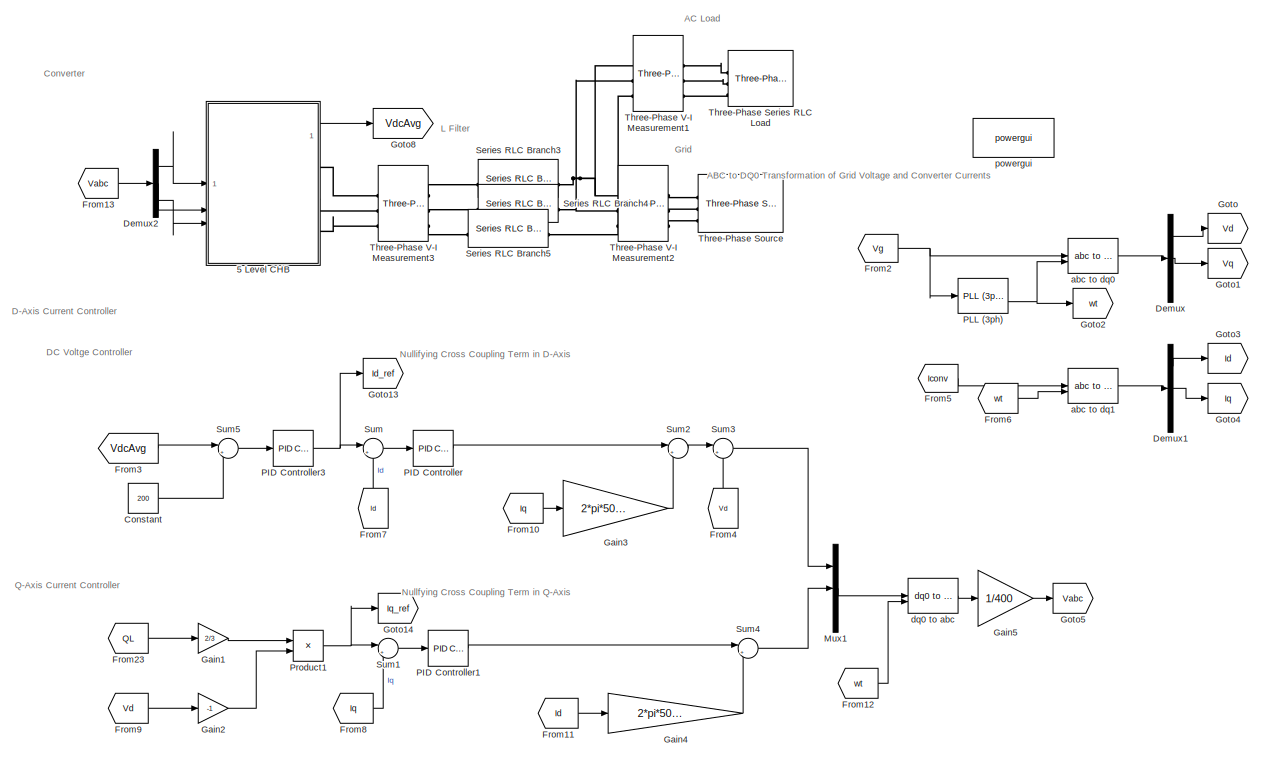
[diagram: root canvas - part 1/2, left side, full height]
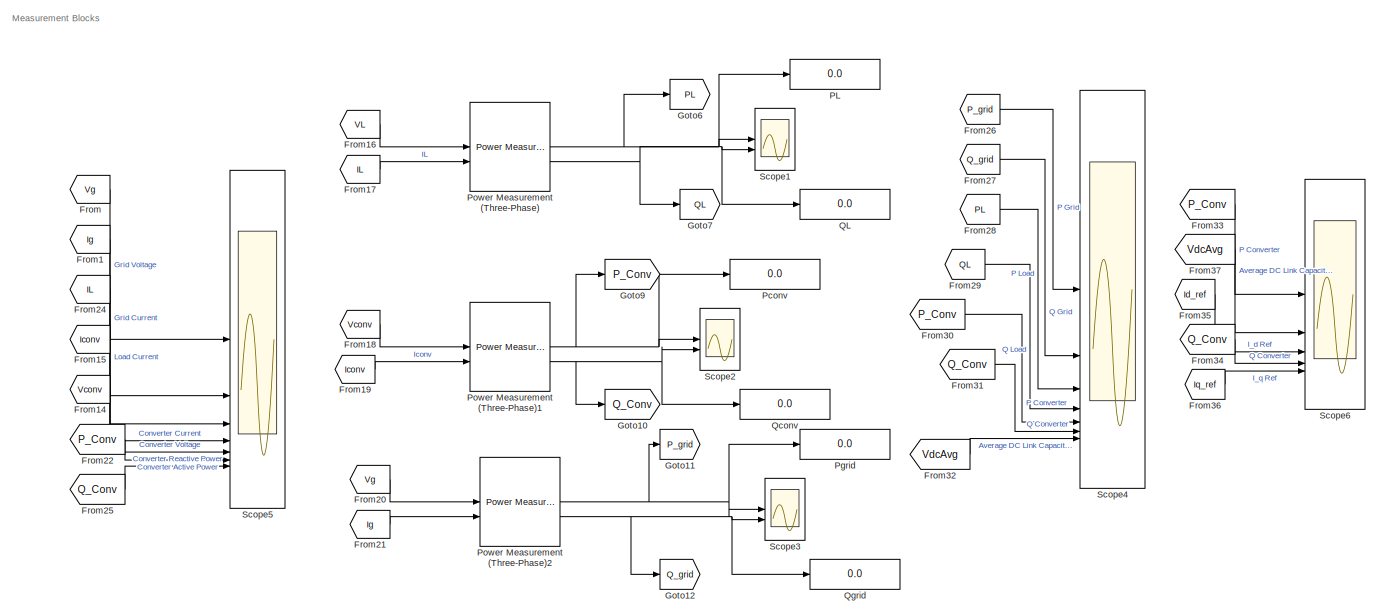
[diagram: root canvas - part 2/2, right side, full height]
MODEL slx_63b66ca47426
KIND model
CONFIG AbsTol = auto
CONFIG EnableMultiTasking = off
CONFIG FixedStep = 1e-6
CONFIG MaxStep = auto
CONFIG MinStep = auto
CONFIG RelTol = 1e-3
CONFIG SampleTimeConstraint = Unconstrained
CONFIG SolverName = ode4
CONFIG StartTime = 0.0
CONFIG StopTime = 2
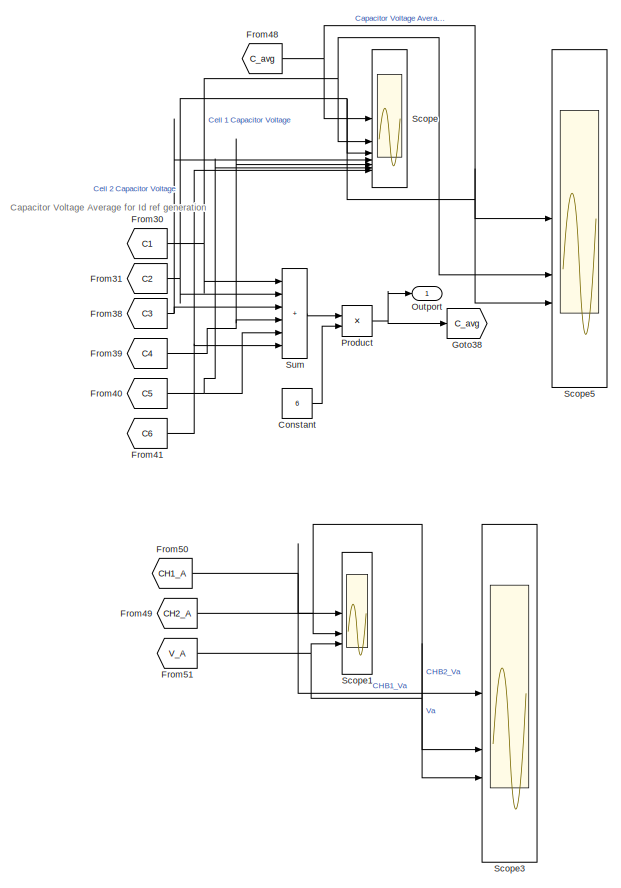
[diagram: 5 Level CHB - part 1/6, right side, full height]
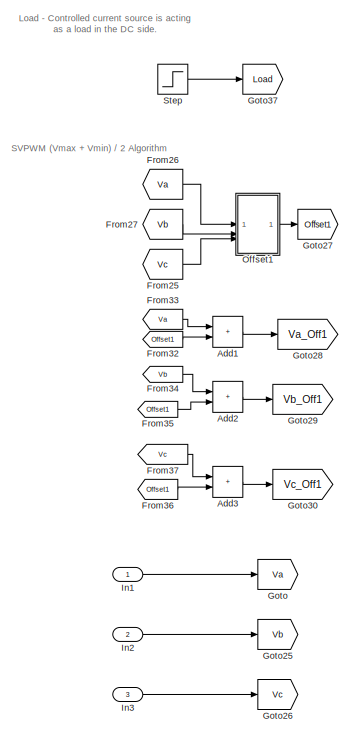
[diagram: 5 Level CHB - part 2/6, middle left region]
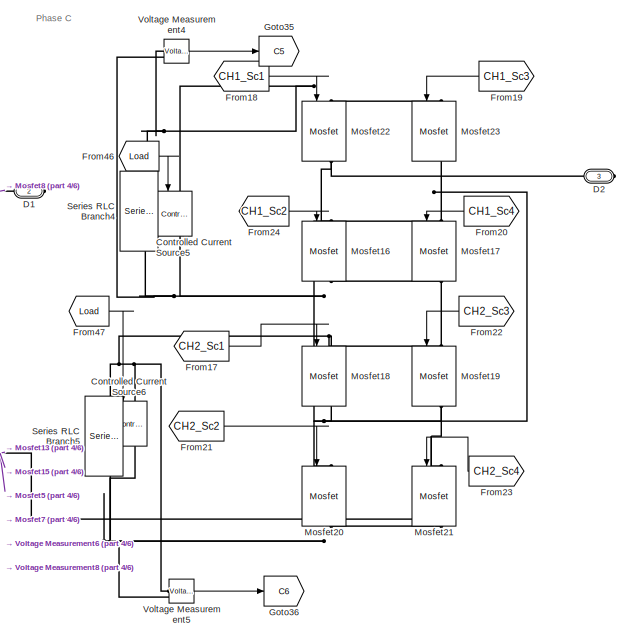
[diagram: 5 Level CHB - part 3/6, central region]
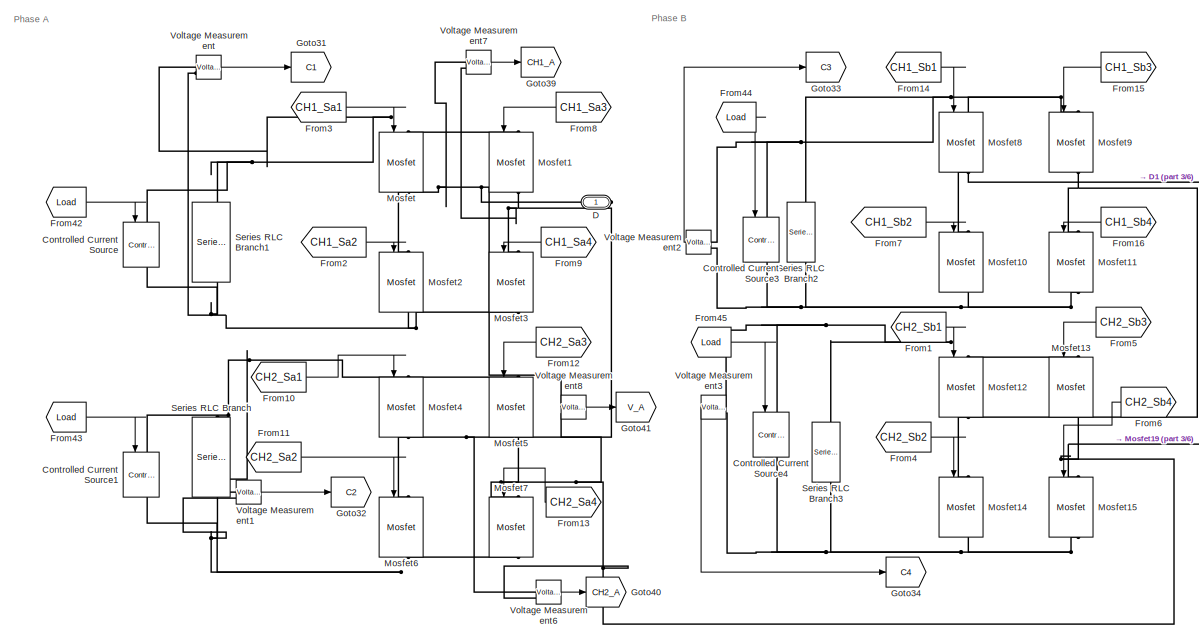
[diagram: 5 Level CHB - part 4/6, middle left region]
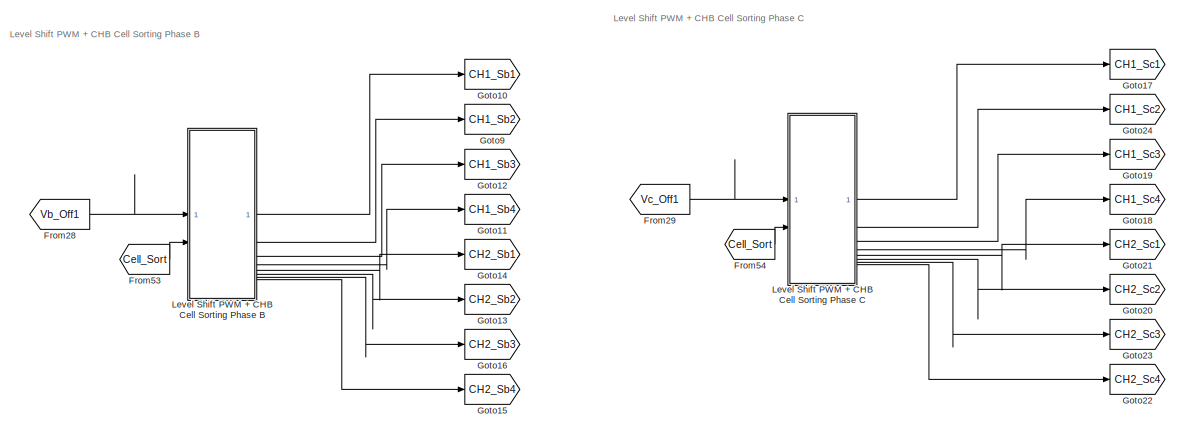
[diagram: 5 Level CHB - part 5/6, bottom center region]
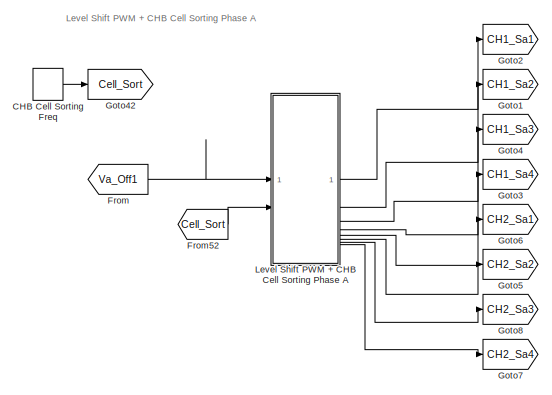
[diagram: 5 Level CHB - part 6/6, bottom left region]
BLOCK [SubSystem] 5 Level CHB
BLOCK [Sum] 5 Level CHB/Add1
  IconShape = rectangular
BLOCK [Sum] 5 Level CHB/Add2
  IconShape = rectangular
BLOCK [Sum] 5 Level CHB/Add3
  IconShape = rectangular
BLOCK [DiscretePulseGenerator] 5 Level CHB/CHB Cell Sorting Freq
  Period = 1/1000
  PulseType = Time based
  PulseWidth = 50
BLOCK [Constant] 5 Level CHB/Constant
  Value = 6
BLOCK [Reference] 5 Level CHB/Controlled Current Source  REF=spsControlledCurrentSourceLib/Controlled Current Source
  LibrarySourceBlock = sps_lib/Sources/Controlled Current Source
  NameLocation = top
  SourceBlock = spsControlledCurrentSourceLib/Controlled Current Source
  SourceType = Controlled Current Source
BLOCK [Reference] 5 Level CHB/Controlled Current Source1  REF=spsControlledCurrentSourceLib/Controlled Current Source
  LibrarySourceBlock = sps_lib/Sources/Controlled Current Source
  NameLocation = top
  SourceBlock = spsControlledCurrentSourceLib/Controlled Current Source
  SourceType = Controlled Current Source
BLOCK [Reference] 5 Level CHB/Controlled Current Source3  REF=spsControlledCurrentSourceLib/Controlled Current Source
  LibrarySourceBlock = sps_lib/Sources/Controlled Current Source
  NameLocation = top
  SourceBlock = spsControlledCurrentSourceLib/Controlled Current Source
  SourceType = Controlled Current Source
BLOCK [Reference] 5 Level CHB/Controlled Current Source4  REF=spsControlledCurrentSourceLib/Controlled Current Source
  LibrarySourceBlock = sps_lib/Sources/Controlled Current Source
  NameLocation = top
  SourceBlock = spsControlledCurrentSourceLib/Controlled Current Source
  SourceType = Controlled Current Source
BLOCK [Reference] 5 Level CHB/Controlled Current Source5  REF=spsControlledCurrentSourceLib/Controlled Current Source
  LibrarySourceBlock = sps_lib/Sources/Controlled Current Source
  NameLocation = top
  SourceBlock = spsControlledCurrentSourceLib/Controlled Current Source
  SourceType = Controlled Current Source
BLOCK [Reference] 5 Level CHB/Controlled Current Source6  REF=spsControlledCurrentSourceLib/Controlled Current Source
  LibrarySourceBlock = sps_lib/Sources/Controlled Current Source
  NameLocation = top
  SourceBlock = spsControlledCurrentSourceLib/Controlled Current Source
  SourceType = Controlled Current Source
BLOCK [PMIOPort] 5 Level CHB/D
  Side = Right
BLOCK [PMIOPort] 5 Level CHB/D1
  Port = 2
  Side = Right
BLOCK [PMIOPort] 5 Level CHB/D2
  Port = 3
  Side = Right
BLOCK [From] 5 Level CHB/From
  GotoTag = Va_Off1
BLOCK [From] 5 Level CHB/From1
  GotoTag = CH2_Sb1
BLOCK [From] 5 Level CHB/From10
  GotoTag = CH2_Sa1
BLOCK [From] 5 Level CHB/From11
  GotoTag = CH2_Sa2
BLOCK [From] 5 Level CHB/From12
  GotoTag = CH2_Sa3
  NameLocation = top
BLOCK [From] 5 Level CHB/From13
  GotoTag = CH2_Sa4
  NameLocation = top
BLOCK [From] 5 Level CHB/From14
  GotoTag = CH1_Sb1
BLOCK [From] 5 Level CHB/From15
  GotoTag = CH1_Sb3
  NameLocation = top
BLOCK [From] 5 Level CHB/From16
  GotoTag = CH1_Sb4
  NameLocation = top
BLOCK [From] 5 Level CHB/From17
  GotoTag = CH2_Sc1
BLOCK [From] 5 Level CHB/From18
  GotoTag = CH1_Sc1
BLOCK [From] 5 Level CHB/From19
  GotoTag = CH1_Sc3
  NameLocation = top
BLOCK [From] 5 Level CHB/From2
  GotoTag = CH1_Sa2
BLOCK [From] 5 Level CHB/From20
  GotoTag = CH1_Sc4
  NameLocation = top
BLOCK [From] 5 Level CHB/From21
  GotoTag = CH2_Sc2
BLOCK [From] 5 Level CHB/From22
  GotoTag = CH2_Sc3
  NameLocation = top
BLOCK [From] 5 Level CHB/From23
  GotoTag = CH2_Sc4
  NameLocation = top
BLOCK [From] 5 Level CHB/From24
  GotoTag = CH1_Sc2
BLOCK [From] 5 Level CHB/From25
  GotoTag = Vc
BLOCK [From] 5 Level CHB/From26
  GotoTag = Va
BLOCK [From] 5 Level CHB/From27
  GotoTag = Vb
BLOCK [From] 5 Level CHB/From28
  GotoTag = Vb_Off1
BLOCK [From] 5 Level CHB/From29
  GotoTag = Vc_Off1
BLOCK [From] 5 Level CHB/From3
  GotoTag = CH1_Sa1
BLOCK [From] 5 Level CHB/From30
  GotoTag = C1
BLOCK [From] 5 Level CHB/From31
  GotoTag = C2
BLOCK [From] 5 Level CHB/From32
  GotoTag = Offset1
BLOCK [From] 5 Level CHB/From33
  GotoTag = Va
BLOCK [From] 5 Level CHB/From34
  GotoTag = Vb
BLOCK [From] 5 Level CHB/From35
  GotoTag = Offset1
BLOCK [From] 5 Level CHB/From36
  GotoTag = Offset1
BLOCK [From] 5 Level CHB/From37
  GotoTag = Vc
BLOCK [From] 5 Level CHB/From38
  GotoTag = C3
BLOCK [From] 5 Level CHB/From39
  GotoTag = C4
BLOCK [From] 5 Level CHB/From4
  GotoTag = CH2_Sb2
BLOCK [From] 5 Level CHB/From40
  GotoTag = C5
BLOCK [From] 5 Level CHB/From41
  GotoTag = C6
BLOCK [From] 5 Level CHB/From42
  GotoTag = Load
BLOCK [From] 5 Level CHB/From43
  GotoTag = Load
BLOCK [From] 5 Level CHB/From44
  GotoTag = Load
BLOCK [From] 5 Level CHB/From45
  GotoTag = Load
BLOCK [From] 5 Level CHB/From46
  GotoTag = Load
BLOCK [From] 5 Level CHB/From47
  GotoTag = Load
BLOCK [From] 5 Level CHB/From48
  GotoTag = C_avg
BLOCK [From] 5 Level CHB/From49
  GotoTag = CH2_A
BLOCK [From] 5 Level CHB/From5
  GotoTag = CH2_Sb3
  NameLocation = top
BLOCK [From] 5 Level CHB/From50
  GotoTag = CH1_A
BLOCK [From] 5 Level CHB/From51
  GotoTag = V_A
BLOCK [From] 5 Level CHB/From52
  GotoTag = Cell_Sort
BLOCK [From] 5 Level CHB/From53
  GotoTag = Cell_Sort
BLOCK [From] 5 Level CHB/From54
  GotoTag = Cell_Sort
BLOCK [From] 5 Level CHB/From6
  GotoTag = CH2_Sb4
  NameLocation = top
BLOCK [From] 5 Level CHB/From7
  GotoTag = CH1_Sb2
BLOCK [From] 5 Level CHB/From8
  GotoTag = CH1_Sa3
  NameLocation = top
BLOCK [From] 5 Level CHB/From9
  GotoTag = CH1_Sa4
  NameLocation = top
BLOCK [Goto] 5 Level CHB/Goto
  GotoTag = Va
BLOCK [Goto] 5 Level CHB/Goto1
  GotoTag = CH1_Sa2
BLOCK [Goto] 5 Level CHB/Goto10
  GotoTag = CH1_Sb1
BLOCK [Goto] 5 Level CHB/Goto11
  GotoTag = CH1_Sb4
BLOCK [Goto] 5 Level CHB/Goto12
  GotoTag = CH1_Sb3
BLOCK [Goto] 5 Level CHB/Goto13
  GotoTag = CH2_Sb2
BLOCK [Goto] 5 Level CHB/Goto14
  GotoTag = CH2_Sb1
BLOCK [Goto] 5 Level CHB/Goto15
  GotoTag = CH2_Sb4
BLOCK [Goto] 5 Level CHB/Goto16
  GotoTag = CH2_Sb3
BLOCK [Goto] 5 Level CHB/Goto17
  GotoTag = CH1_Sc1
BLOCK [Goto] 5 Level CHB/Goto18
  GotoTag = CH1_Sc4
BLOCK [Goto] 5 Level CHB/Goto19
  GotoTag = CH1_Sc3
BLOCK [Goto] 5 Level CHB/Goto2
  GotoTag = CH1_Sa1
BLOCK [Goto] 5 Level CHB/Goto20
  GotoTag = CH2_Sc2
BLOCK [Goto] 5 Level CHB/Goto21
  GotoTag = CH2_Sc1
BLOCK [Goto] 5 Level CHB/Goto22
  GotoTag = CH2_Sc4
BLOCK [Goto] 5 Level CHB/Goto23
  GotoTag = CH2_Sc3
BLOCK [Goto] 5 Level CHB/Goto24
  GotoTag = CH1_Sc2
BLOCK [Goto] 5 Level CHB/Goto25
  GotoTag = Vb
BLOCK [Goto] 5 Level CHB/Goto26
  GotoTag = Vc
BLOCK [Goto] 5 Level CHB/Goto27
  GotoTag = Offset1
BLOCK [Goto] 5 Level CHB/Goto28
  GotoTag = Va_Off1
BLOCK [Goto] 5 Level CHB/Goto29
  GotoTag = Vb_Off1
BLOCK [Goto] 5 Level CHB/Goto3
  GotoTag = CH1_Sa4
BLOCK [Goto] 5 Level CHB/Goto30
  GotoTag = Vc_Off1
BLOCK [Goto] 5 Level CHB/Goto31
  GotoTag = C1
BLOCK [Goto] 5 Level CHB/Goto32
  GotoTag = C2
BLOCK [Goto] 5 Level CHB/Goto33
  GotoTag = C3
BLOCK [Goto] 5 Level CHB/Goto34
  GotoTag = C4
BLOCK [Goto] 5 Level CHB/Goto35
  GotoTag = C5
BLOCK [Goto] 5 Level CHB/Goto36
  GotoTag = C6
BLOCK [Goto] 5 Level CHB/Goto37
  GotoTag = Load
BLOCK [Goto] 5 Level CHB/Goto38
  GotoTag = C_avg
BLOCK [Goto] 5 Level CHB/Goto39
  GotoTag = CH1_A
BLOCK [Goto] 5 Level CHB/Goto4
  GotoTag = CH1_Sa3
BLOCK [Goto] 5 Level CHB/Goto40
  GotoTag = CH2_A
BLOCK [Goto] 5 Level CHB/Goto41
  GotoTag = V_A
BLOCK [Goto] 5 Level CHB/Goto42
  GotoTag = Cell_Sort
BLOCK [Goto] 5 Level CHB/Goto5
  GotoTag = CH2_Sa2
BLOCK [Goto] 5 Level CHB/Goto6
  GotoTag = CH2_Sa1
BLOCK [Goto] 5 Level CHB/Goto7
  GotoTag = CH2_Sa4
BLOCK [Goto] 5 Level CHB/Goto8
  GotoTag = CH2_Sa3
BLOCK [Goto] 5 Level CHB/Goto9
  GotoTag = CH1_Sb2
BLOCK [Inport] 5 Level CHB/In1
BLOCK [Inport] 5 Level CHB/In2
  Port = 2
BLOCK [Inport] 5 Level CHB/In3
  Port = 3
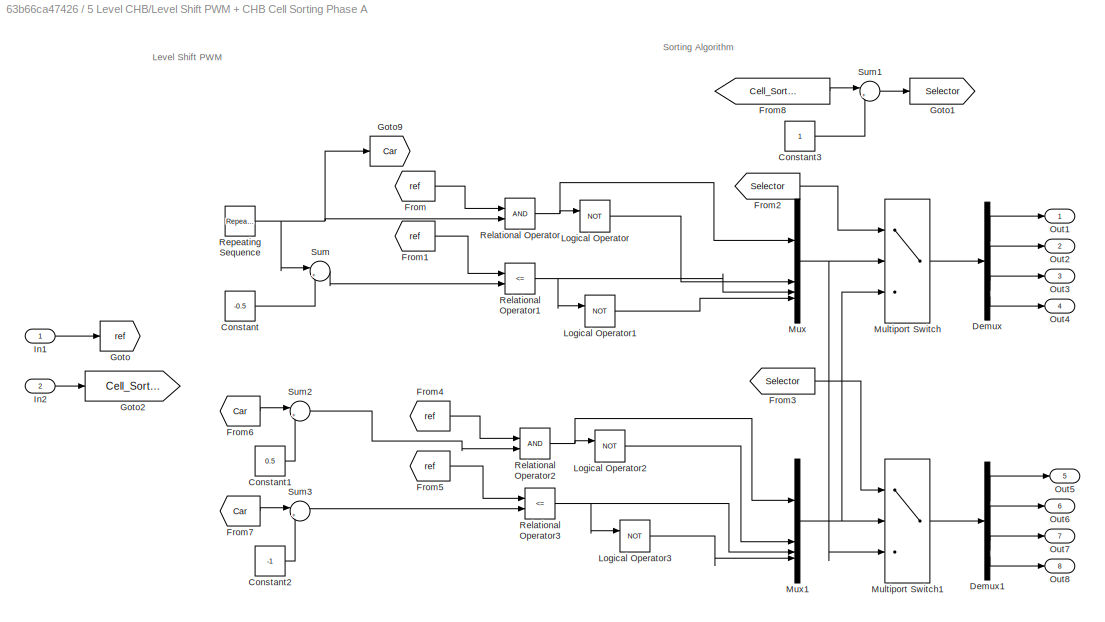
BLOCK [SubSystem] 5 Level CHB/Level Shift PWM + CHB Cell Sorting Phase A
BLOCK [Constant] 5 Level CHB/Level Shift PWM + CHB Cell Sorting Phase A/Constant
  Value = -0.5
BLOCK [Constant] 5 Level CHB/Level Shift PWM + CHB Cell Sorting Phase A/Constant1
  Value = 0.5
BLOCK [Constant] 5 Level CHB/Level Shift PWM + CHB Cell Sorting Phase A/Constant2
  Value = -1
BLOCK [Constant] 5 Level CHB/Level Shift PWM + CHB Cell Sorting Phase A/Constant3
BLOCK [Demux] 5 Level CHB/Level Shift PWM + CHB Cell Sorting Phase A/Demux
BLOCK [Demux] 5 Level CHB/Level Shift PWM + CHB Cell Sorting Phase A/Demux1
BLOCK [From] 5 Level CHB/Level Shift PWM + CHB Cell Sorting Phase A/From
  GotoTag = ref
BLOCK [From] 5 Level CHB/Level Shift PWM + CHB Cell Sorting Phase A/From1
  GotoTag = ref
BLOCK [From] 5 Level CHB/Level Shift PWM + CHB Cell Sorting Phase A/From2
  GotoTag = Selector
BLOCK [From] 5 Level CHB/Level Shift PWM + CHB Cell Sorting Phase A/From3
  GotoTag = Selector
BLOCK [From] 5 Level CHB/Level Shift PWM + CHB Cell Sorting Phase A/From4
  GotoTag = ref
BLOCK [From] 5 Level CHB/Level Shift PWM + CHB Cell Sorting Phase A/From5
  GotoTag = ref
BLOCK [From] 5 Level CHB/Level Shift PWM + CHB Cell Sorting Phase A/From6
  GotoTag = Car
BLOCK [From] 5 Level CHB/Level Shift PWM + CHB Cell Sorting Phase A/From7
  GotoTag = Car
BLOCK [From] 5 Level CHB/Level Shift PWM + CHB Cell Sorting Phase A/From8
  GotoTag = Cell_Sort_Freq
BLOCK [Goto] 5 Level CHB/Level Shift PWM + CHB Cell Sorting Phase A/Goto
  GotoTag = ref
BLOCK [Goto] 5 Level CHB/Level Shift PWM + CHB Cell Sorting Phase A/Goto1
  GotoTag = Selector
BLOCK [Goto] 5 Level CHB/Level Shift PWM + CHB Cell Sorting Phase A/Goto2
  GotoTag = Cell_Sort_Freq
BLOCK [Goto] 5 Level CHB/Level Shift PWM + CHB Cell Sorting Phase A/Goto9
  GotoTag = Car
BLOCK [Inport] 5 Level CHB/Level Shift PWM + CHB Cell Sorting Phase A/In1
BLOCK [Inport] 5 Level CHB/Level Shift PWM + CHB Cell Sorting Phase A/In2
  Port = 2
BLOCK [Logic] 5 Level CHB/Level Shift PWM + CHB Cell Sorting Phase A/Logical Operator
  AllPortsSameDT = off
  Operator = NOT
  OutDataTypeStr = boolean
BLOCK [Logic] 5 Level CHB/Level Shift PWM + CHB Cell Sorting Phase A/Logical Operator1
  AllPortsSameDT = off
  Operator = NOT
  OutDataTypeStr = boolean
BLOCK [Logic] 5 Level CHB/Level Shift PWM + CHB Cell Sorting Phase A/Logical Operator2
  AllPortsSameDT = off
  Operator = NOT
  OutDataTypeStr = boolean
BLOCK [Logic] 5 Level CHB/Level Shift PWM + CHB Cell Sorting Phase A/Logical Operator3
  AllPortsSameDT = off
  Operator = NOT
  OutDataTypeStr = boolean
BLOCK [MultiPortSwitch] 5 Level CHB/Level Shift PWM + CHB Cell Sorting Phase A/Multiport Switch
  InputSameDT = off
  Inputs = 2
  SaturateOnIntegerOverflow = off
BLOCK [MultiPortSwitch] 5 Level CHB/Level Shift PWM + CHB Cell Sorting Phase A/Multiport Switch1
  InputSameDT = off
  Inputs = 2
  SaturateOnIntegerOverflow = off
BLOCK [Mux] 5 Level CHB/Level Shift PWM + CHB Cell Sorting Phase A/Mux
  DisplayOption = bar
BLOCK [Mux] 5 Level CHB/Level Shift PWM + CHB Cell Sorting Phase A/Mux1
  DisplayOption = bar
BLOCK [Outport] 5 Level CHB/Level Shift PWM + CHB Cell Sorting Phase A/Out1
BLOCK [Outport] 5 Level CHB/Level Shift PWM + CHB Cell Sorting Phase A/Out2
  Port = 2
BLOCK [Outport] 5 Level CHB/Level Shift PWM + CHB Cell Sorting Phase A/Out3
  Port = 3
BLOCK [Outport] 5 Level CHB/Level Shift PWM + CHB Cell Sorting Phase A/Out4
  Port = 4
BLOCK [Outport] 5 Level CHB/Level Shift PWM + CHB Cell Sorting Phase A/Out5
  Port = 5
BLOCK [Outport] 5 Level CHB/Level Shift PWM + CHB Cell Sorting Phase A/Out6
  Port = 6
BLOCK [Outport] 5 Level CHB/Level Shift PWM + CHB Cell Sorting Phase A/Out7
  Port = 7
BLOCK [Outport] 5 Level CHB/Level Shift PWM + CHB Cell Sorting Phase A/Out8
  Port = 8
BLOCK [RelationalOperator] 5 Level CHB/Level Shift PWM + CHB Cell Sorting Phase A/Relational Operator
  InputSameDT = off
  OutDataTypeStr = boolean
  RndMeth = Simplest
BLOCK [RelationalOperator] 5 Level CHB/Level Shift PWM + CHB Cell Sorting Phase A/Relational Operator1
  InputSameDT = off
  Operator = <=
  OutDataTypeStr = boolean
  RndMeth = Simplest
BLOCK [RelationalOperator] 5 Level CHB/Level Shift PWM + CHB Cell Sorting Phase A/Relational Operator2
  InputSameDT = off
  OutDataTypeStr = boolean
  RndMeth = Simplest
BLOCK [RelationalOperator] 5 Level CHB/Level Shift PWM + CHB Cell Sorting Phase A/Relational Operator3
  InputSameDT = off
  Operator = <=
  OutDataTypeStr = boolean
  RndMeth = Simplest
BLOCK [Reference] 5 Level CHB/Level Shift PWM + CHB Cell Sorting Phase A/Repeating Sequence  REF=simulink/Sources/Repeating
Sequence
  SourceBlock = simulink/Sources/Repeating\nSequence
  SourceType = Repeating table
BLOCK [Sum] 5 Level CHB/Level Shift PWM + CHB Cell Sorting Phase A/Sum
  Inputs = |++
BLOCK [Sum] 5 Level CHB/Level Shift PWM + CHB Cell Sorting Phase A/Sum1
  Inputs = |++
BLOCK [Sum] 5 Level CHB/Level Shift PWM + CHB Cell Sorting Phase A/Sum2
  Inputs = |++
BLOCK [Sum] 5 Level CHB/Level Shift PWM + CHB Cell Sorting Phase A/Sum3
  Inputs = |++
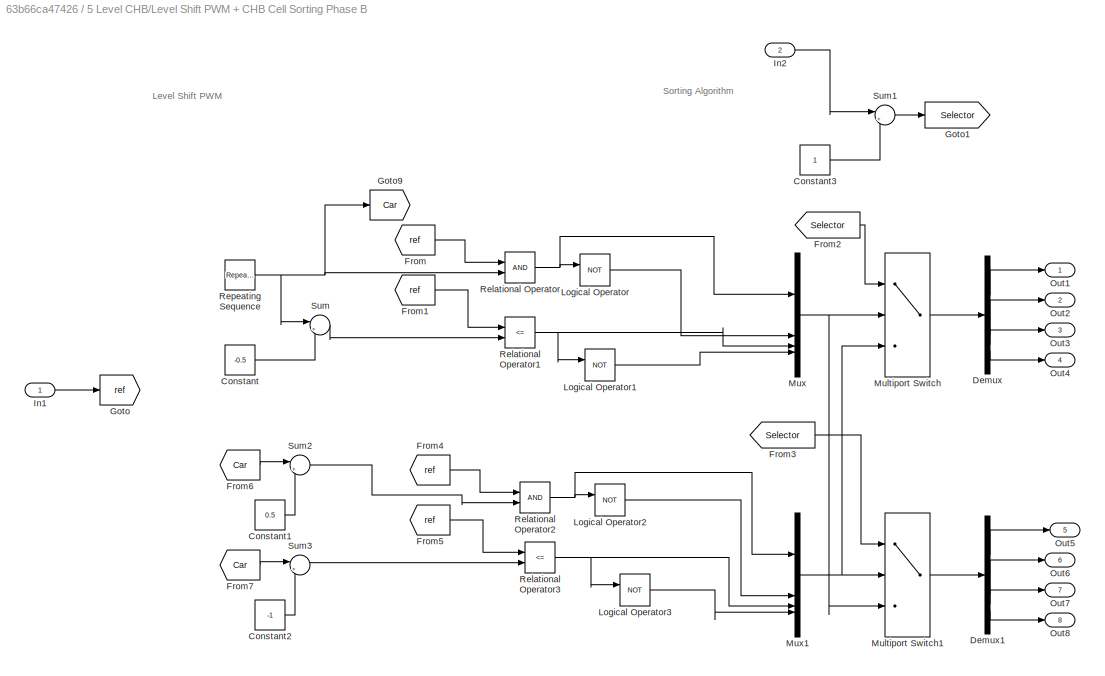
BLOCK [SubSystem] 5 Level CHB/Level Shift PWM + CHB Cell Sorting Phase B
BLOCK [Constant] 5 Level CHB/Level Shift PWM + CHB Cell Sorting Phase B/Constant
  Value = -0.5
BLOCK [Constant] 5 Level CHB/Level Shift PWM + CHB Cell Sorting Phase B/Constant1
  Value = 0.5
BLOCK [Constant] 5 Level CHB/Level Shift PWM + CHB Cell Sorting Phase B/Constant2
  Value = -1
BLOCK [Constant] 5 Level CHB/Level Shift PWM + CHB Cell Sorting Phase B/Constant3
BLOCK [Demux] 5 Level CHB/Level Shift PWM + CHB Cell Sorting Phase B/Demux
BLOCK [Demux] 5 Level CHB/Level Shift PWM + CHB Cell Sorting Phase B/Demux1
BLOCK [From] 5 Level CHB/Level Shift PWM + CHB Cell Sorting Phase B/From
  GotoTag = ref
BLOCK [From] 5 Level CHB/Level Shift PWM + CHB Cell Sorting Phase B/From1
  GotoTag = ref
BLOCK [From] 5 Level CHB/Level Shift PWM + CHB Cell Sorting Phase B/From2
  GotoTag = Selector
BLOCK [From] 5 Level CHB/Level Shift PWM + CHB Cell Sorting Phase B/From3
  GotoTag = Selector
BLOCK [From] 5 Level CHB/Level Shift PWM + CHB Cell Sorting Phase B/From4
  GotoTag = ref
BLOCK [From] 5 Level CHB/Level Shift PWM + CHB Cell Sorting Phase B/From5
  GotoTag = ref
BLOCK [From] 5 Level CHB/Level Shift PWM + CHB Cell Sorting Phase B/From6
  GotoTag = Car
BLOCK [From] 5 Level CHB/Level Shift PWM + CHB Cell Sorting Phase B/From7
  GotoTag = Car
BLOCK [Goto] 5 Level CHB/Level Shift PWM + CHB Cell Sorting Phase B/Goto
  GotoTag = ref
BLOCK [Goto] 5 Level CHB/Level Shift PWM + CHB Cell Sorting Phase B/Goto1
  GotoTag = Selector
BLOCK [Goto] 5 Level CHB/Level Shift PWM + CHB Cell Sorting Phase B/Goto9
  GotoTag = Car
BLOCK [Inport] 5 Level CHB/Level Shift PWM + CHB Cell Sorting Phase B/In1
BLOCK [Inport] 5 Level CHB/Level Shift PWM + CHB Cell Sorting Phase B/In2
  Port = 2
BLOCK [Logic] 5 Level CHB/Level Shift PWM + CHB Cell Sorting Phase B/Logical Operator
  AllPortsSameDT = off
  Operator = NOT
  OutDataTypeStr = boolean
BLOCK [Logic] 5 Level CHB/Level Shift PWM + CHB Cell Sorting Phase B/Logical Operator1
  AllPortsSameDT = off
  Operator = NOT
  OutDataTypeStr = boolean
BLOCK [Logic] 5 Level CHB/Level Shift PWM + CHB Cell Sorting Phase B/Logical Operator2
  AllPortsSameDT = off
  Operator = NOT
  OutDataTypeStr = boolean
BLOCK [Logic] 5 Level CHB/Level Shift PWM + CHB Cell Sorting Phase B/Logical Operator3
  AllPortsSameDT = off
  Operator = NOT
  OutDataTypeStr = boolean
BLOCK [MultiPortSwitch] 5 Level CHB/Level Shift PWM + CHB Cell Sorting Phase B/Multiport Switch
  InputSameDT = off
  Inputs = 2
  SaturateOnIntegerOverflow = off
BLOCK [MultiPortSwitch] 5 Level CHB/Level Shift PWM + CHB Cell Sorting Phase B/Multiport Switch1
  InputSameDT = off
  Inputs = 2
  SaturateOnIntegerOverflow = off
BLOCK [Mux] 5 Level CHB/Level Shift PWM + CHB Cell Sorting Phase B/Mux
  DisplayOption = bar
BLOCK [Mux] 5 Level CHB/Level Shift PWM + CHB Cell Sorting Phase B/Mux1
  DisplayOption = bar
BLOCK [Outport] 5 Level CHB/Level Shift PWM + CHB Cell Sorting Phase B/Out1
BLOCK [Outport] 5 Level CHB/Level Shift PWM + CHB Cell Sorting Phase B/Out2
  Port = 2
BLOCK [Outport] 5 Level CHB/Level Shift PWM + CHB Cell Sorting Phase B/Out3
  Port = 3
BLOCK [Outport] 5 Level CHB/Level Shift PWM + CHB Cell Sorting Phase B/Out4
  Port = 4
BLOCK [Outport] 5 Level CHB/Level Shift PWM + CHB Cell Sorting Phase B/Out5
  Port = 5
BLOCK [Outport] 5 Level CHB/Level Shift PWM + CHB Cell Sorting Phase B/Out6
  Port = 6
BLOCK [Outport] 5 Level CHB/Level Shift PWM + CHB Cell Sorting Phase B/Out7
  Port = 7
BLOCK [Outport] 5 Level CHB/Level Shift PWM + CHB Cell Sorting Phase B/Out8
  Port = 8
BLOCK [RelationalOperator] 5 Level CHB/Level Shift PWM + CHB Cell Sorting Phase B/Relational Operator
  InputSameDT = off
  OutDataTypeStr = boolean
  RndMeth = Simplest
BLOCK [RelationalOperator] 5 Level CHB/Level Shift PWM + CHB Cell Sorting Phase B/Relational Operator1
  InputSameDT = off
  Operator = <=
  OutDataTypeStr = boolean
  RndMeth = Simplest
BLOCK [RelationalOperator] 5 Level CHB/Level Shift PWM + CHB Cell Sorting Phase B/Relational Operator2
  InputSameDT = off
  OutDataTypeStr = boolean
  RndMeth = Simplest
BLOCK [RelationalOperator] 5 Level CHB/Level Shift PWM + CHB Cell Sorting Phase B/Relational Operator3
  InputSameDT = off
  Operator = <=
  OutDataTypeStr = boolean
  RndMeth = Simplest
BLOCK [Reference] 5 Level CHB/Level Shift PWM + CHB Cell Sorting Phase B/Repeating Sequence  REF=simulink/Sources/Repeating
Sequence
  SourceBlock = simulink/Sources/Repeating\nSequence
  SourceType = Repeating table
BLOCK [Sum] 5 Level CHB/Level Shift PWM + CHB Cell Sorting Phase B/Sum
  Inputs = |++
BLOCK [Sum] 5 Level CHB/Level Shift PWM + CHB Cell Sorting Phase B/Sum1
  Inputs = |++
BLOCK [Sum] 5 Level CHB/Level Shift PWM + CHB Cell Sorting Phase B/Sum2
  Inputs = |++
BLOCK [Sum] 5 Level CHB/Level Shift PWM + CHB Cell Sorting Phase B/Sum3
  Inputs = |++
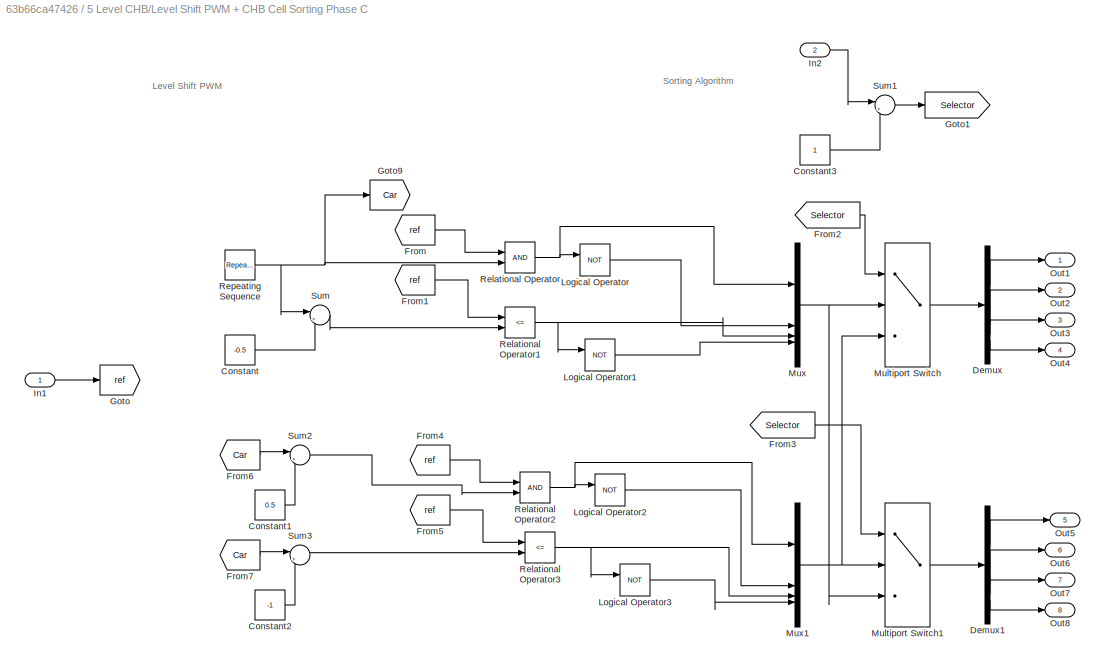
BLOCK [SubSystem] 5 Level CHB/Level Shift PWM + CHB Cell Sorting Phase C
BLOCK [Constant] 5 Level CHB/Level Shift PWM + CHB Cell Sorting Phase C/Constant
  Value = -0.5
BLOCK [Constant] 5 Level CHB/Level Shift PWM + CHB Cell Sorting Phase C/Constant1
  Value = 0.5
BLOCK [Constant] 5 Level CHB/Level Shift PWM + CHB Cell Sorting Phase C/Constant2
  Value = -1
BLOCK [Constant] 5 Level CHB/Level Shift PWM + CHB Cell Sorting Phase C/Constant3
BLOCK [Demux] 5 Level CHB/Level Shift PWM + CHB Cell Sorting Phase C/Demux
BLOCK [Demux] 5 Level CHB/Level Shift PWM + CHB Cell Sorting Phase C/Demux1
BLOCK [From] 5 Level CHB/Level Shift PWM + CHB Cell Sorting Phase C/From
  GotoTag = ref
BLOCK [From] 5 Level CHB/Level Shift PWM + CHB Cell Sorting Phase C/From1
  GotoTag = ref
BLOCK [From] 5 Level CHB/Level Shift PWM + CHB Cell Sorting Phase C/From2
  GotoTag = Selector
BLOCK [From] 5 Level CHB/Level Shift PWM + CHB Cell Sorting Phase C/From3
  GotoTag = Selector
BLOCK [From] 5 Level CHB/Level Shift PWM + CHB Cell Sorting Phase C/From4
  GotoTag = ref
BLOCK [From] 5 Level CHB/Level Shift PWM + CHB Cell Sorting Phase C/From5
  GotoTag = ref
BLOCK [From] 5 Level CHB/Level Shift PWM + CHB Cell Sorting Phase C/From6
  GotoTag = Car
BLOCK [From] 5 Level CHB/Level Shift PWM + CHB Cell Sorting Phase C/From7
  GotoTag = Car
BLOCK [Goto] 5 Level CHB/Level Shift PWM + CHB Cell Sorting Phase C/Goto
  GotoTag = ref
BLOCK [Goto] 5 Level CHB/Level Shift PWM + CHB Cell Sorting Phase C/Goto1
  GotoTag = Selector
BLOCK [Goto] 5 Level CHB/Level Shift PWM + CHB Cell Sorting Phase C/Goto9
  GotoTag = Car
BLOCK [Inport] 5 Level CHB/Level Shift PWM + CHB Cell Sorting Phase C/In1
BLOCK [Inport] 5 Level CHB/Level Shift PWM + CHB Cell Sorting Phase C/In2
  Port = 2
BLOCK [Logic] 5 Level CHB/Level Shift PWM + CHB Cell Sorting Phase C/Logical Operator
  AllPortsSameDT = off
  Operator = NOT
  OutDataTypeStr = boolean
BLOCK [Logic] 5 Level CHB/Level Shift PWM + CHB Cell Sorting Phase C/Logical Operator1
  AllPortsSameDT = off
  Operator = NOT
  OutDataTypeStr = boolean
BLOCK [Logic] 5 Level CHB/Level Shift PWM + CHB Cell Sorting Phase C/Logical Operator2
  AllPortsSameDT = off
  Operator = NOT
  OutDataTypeStr = boolean
BLOCK [Logic] 5 Level CHB/Level Shift PWM + CHB Cell Sorting Phase C/Logical Operator3
  AllPortsSameDT = off
  Operator = NOT
  OutDataTypeStr = boolean
BLOCK [MultiPortSwitch] 5 Level CHB/Level Shift PWM + CHB Cell Sorting Phase C/Multiport Switch
  InputSameDT = off
  Inputs = 2
  SaturateOnIntegerOverflow = off
BLOCK [MultiPortSwitch] 5 Level CHB/Level Shift PWM + CHB Cell Sorting Phase C/Multiport Switch1
  InputSameDT = off
  Inputs = 2
  SaturateOnIntegerOverflow = off
BLOCK [Mux] 5 Level CHB/Level Shift PWM + CHB Cell Sorting Phase C/Mux
  DisplayOption = bar
BLOCK [Mux] 5 Level CHB/Level Shift PWM + CHB Cell Sorting Phase C/Mux1
  DisplayOption = bar
BLOCK [Outport] 5 Level CHB/Level Shift PWM + CHB Cell Sorting Phase C/Out1
BLOCK [Outport] 5 Level CHB/Level Shift PWM + CHB Cell Sorting Phase C/Out2
  Port = 2
BLOCK [Outport] 5 Level CHB/Level Shift PWM + CHB Cell Sorting Phase C/Out3
  Port = 3
BLOCK [Outport] 5 Level CHB/Level Shift PWM + CHB Cell Sorting Phase C/Out4
  Port = 4
BLOCK [Outport] 5 Level CHB/Level Shift PWM + CHB Cell Sorting Phase C/Out5
  Port = 5
BLOCK [Outport] 5 Level CHB/Level Shift PWM + CHB Cell Sorting Phase C/Out6
  Port = 6
BLOCK [Outport] 5 Level CHB/Level Shift PWM + CHB Cell Sorting Phase C/Out7
  Port = 7
BLOCK [Outport] 5 Level CHB/Level Shift PWM + CHB Cell Sorting Phase C/Out8
  Port = 8
BLOCK [RelationalOperator] 5 Level CHB/Level Shift PWM + CHB Cell Sorting Phase C/Relational Operator
  InputSameDT = off
  OutDataTypeStr = boolean
  RndMeth = Simplest
BLOCK [RelationalOperator] 5 Level CHB/Level Shift PWM + CHB Cell Sorting Phase C/Relational Operator1
  InputSameDT = off
  Operator = <=
  OutDataTypeStr = boolean
  RndMeth = Simplest
BLOCK [RelationalOperator] 5 Level CHB/Level Shift PWM + CHB Cell Sorting Phase C/Relational Operator2
  InputSameDT = off
  OutDataTypeStr = boolean
  RndMeth = Simplest
BLOCK [RelationalOperator] 5 Level CHB/Level Shift PWM + CHB Cell Sorting Phase C/Relational Operator3
  InputSameDT = off
  Operator = <=
  OutDataTypeStr = boolean
  RndMeth = Simplest
BLOCK [Reference] 5 Level CHB/Level Shift PWM + CHB Cell Sorting Phase C/Repeating Sequence  REF=simulink/Sources/Repeating
Sequence
  SourceBlock = simulink/Sources/Repeating\nSequence
  SourceType = Repeating table
BLOCK [Sum] 5 Level CHB/Level Shift PWM + CHB Cell Sorting Phase C/Sum
  Inputs = |++
BLOCK [Sum] 5 Level CHB/Level Shift PWM + CHB Cell Sorting Phase C/Sum1
  Inputs = |++
BLOCK [Sum] 5 Level CHB/Level Shift PWM + CHB Cell Sorting Phase C/Sum2
  Inputs = |++
BLOCK [Sum] 5 Level CHB/Level Shift PWM + CHB Cell Sorting Phase C/Sum3
  Inputs = |++
BLOCK [Reference] 5 Level CHB/Mosfet  REF=spsMosfetLib/Mosfet
  LibrarySourceBlock = sps_lib/Power Electronics/Mosfet
  NameLocation = left
  SourceBlock = spsMosfetLib/Mosfet
  SourceType = Mosfet
BLOCK [Reference] 5 Level CHB/Mosfet1  REF=spsMosfetLib/Mosfet
  LibrarySourceBlock = sps_lib/Power Electronics/Mosfet
  NameLocation = left
  SourceBlock = spsMosfetLib/Mosfet
  SourceType = Mosfet
BLOCK [Reference] 5 Level CHB/Mosfet10  REF=spsMosfetLib/Mosfet
  LibrarySourceBlock = sps_lib/Power Electronics/Mosfet
  NameLocation = left
  SourceBlock = spsMosfetLib/Mosfet
  SourceType = Mosfet
BLOCK [Reference] 5 Level CHB/Mosfet11  REF=spsMosfetLib/Mosfet
  LibrarySourceBlock = sps_lib/Power Electronics/Mosfet
  NameLocation = left
  SourceBlock = spsMosfetLib/Mosfet
  SourceType = Mosfet
BLOCK [Reference] 5 Level CHB/Mosfet12  REF=spsMosfetLib/Mosfet
  LibrarySourceBlock = sps_lib/Power Electronics/Mosfet
  NameLocation = left
  SourceBlock = spsMosfetLib/Mosfet
  SourceType = Mosfet
BLOCK [Reference] 5 Level CHB/Mosfet13  REF=spsMosfetLib/Mosfet
  LibrarySourceBlock = sps_lib/Power Electronics/Mosfet
  NameLocation = left
  SourceBlock = spsMosfetLib/Mosfet
  SourceType = Mosfet
BLOCK [Reference] 5 Level CHB/Mosfet14  REF=spsMosfetLib/Mosfet
  LibrarySourceBlock = sps_lib/Power Electronics/Mosfet
  NameLocation = left
  SourceBlock = spsMosfetLib/Mosfet
  SourceType = Mosfet
BLOCK [Reference] 5 Level CHB/Mosfet15  REF=spsMosfetLib/Mosfet
  LibrarySourceBlock = sps_lib/Power Electronics/Mosfet
  NameLocation = left
  SourceBlock = spsMosfetLib/Mosfet
  SourceType = Mosfet
BLOCK [Reference] 5 Level CHB/Mosfet16  REF=spsMosfetLib/Mosfet
  LibrarySourceBlock = sps_lib/Power Electronics/Mosfet
  NameLocation = left
  SourceBlock = spsMosfetLib/Mosfet
  SourceType = Mosfet
BLOCK [Reference] 5 Level CHB/Mosfet17  REF=spsMosfetLib/Mosfet
  LibrarySourceBlock = sps_lib/Power Electronics/Mosfet
  NameLocation = left
  SourceBlock = spsMosfetLib/Mosfet
  SourceType = Mosfet
BLOCK [Reference] 5 Level CHB/Mosfet18  REF=spsMosfetLib/Mosfet
  LibrarySourceBlock = sps_lib/Power Electronics/Mosfet
  NameLocation = left
  SourceBlock = spsMosfetLib/Mosfet
  SourceType = Mosfet
BLOCK [Reference] 5 Level CHB/Mosfet19  REF=spsMosfetLib/Mosfet
  LibrarySourceBlock = sps_lib/Power Electronics/Mosfet
  NameLocation = left
  SourceBlock = spsMosfetLib/Mosfet
  SourceType = Mosfet
BLOCK [Reference] 5 Level CHB/Mosfet2  REF=spsMosfetLib/Mosfet
  LibrarySourceBlock = sps_lib/Power Electronics/Mosfet
  NameLocation = left
  SourceBlock = spsMosfetLib/Mosfet
  SourceType = Mosfet
BLOCK [Reference] 5 Level CHB/Mosfet20  REF=spsMosfetLib/Mosfet
  LibrarySourceBlock = sps_lib/Power Electronics/Mosfet
  NameLocation = left
  SourceBlock = spsMosfetLib/Mosfet
  SourceType = Mosfet
BLOCK [Reference] 5 Level CHB/Mosfet21  REF=spsMosfetLib/Mosfet
  LibrarySourceBlock = sps_lib/Power Electronics/Mosfet
  NameLocation = left
  SourceBlock = spsMosfetLib/Mosfet
  SourceType = Mosfet
BLOCK [Reference] 5 Level CHB/Mosfet22  REF=spsMosfetLib/Mosfet
  LibrarySourceBlock = sps_lib/Power Electronics/Mosfet
  NameLocation = left
  SourceBlock = spsMosfetLib/Mosfet
  SourceType = Mosfet
BLOCK [Reference] 5 Level CHB/Mosfet23  REF=spsMosfetLib/Mosfet
  LibrarySourceBlock = sps_lib/Power Electronics/Mosfet
  NameLocation = left
  SourceBlock = spsMosfetLib/Mosfet
  SourceType = Mosfet
BLOCK [Reference] 5 Level CHB/Mosfet3  REF=spsMosfetLib/Mosfet
  LibrarySourceBlock = sps_lib/Power Electronics/Mosfet
  NameLocation = left
  SourceBlock = spsMosfetLib/Mosfet
  SourceType = Mosfet
BLOCK [Reference] 5 Level CHB/Mosfet4  REF=spsMosfetLib/Mosfet
  LibrarySourceBlock = sps_lib/Power Electronics/Mosfet
  NameLocation = left
  SourceBlock = spsMosfetLib/Mosfet
  SourceType = Mosfet
BLOCK [Reference] 5 Level CHB/Mosfet5  REF=spsMosfetLib/Mosfet
  LibrarySourceBlock = sps_lib/Power Electronics/Mosfet
  NameLocation = left
  SourceBlock = spsMosfetLib/Mosfet
  SourceType = Mosfet
BLOCK [Reference] 5 Level CHB/Mosfet6  REF=spsMosfetLib/Mosfet
  LibrarySourceBlock = sps_lib/Power Electronics/Mosfet
  NameLocation = left
  SourceBlock = spsMosfetLib/Mosfet
  SourceType = Mosfet
BLOCK [Reference] 5 Level CHB/Mosfet7  REF=spsMosfetLib/Mosfet
  LibrarySourceBlock = sps_lib/Power Electronics/Mosfet
  NameLocation = left
  SourceBlock = spsMosfetLib/Mosfet
  SourceType = Mosfet
BLOCK [Reference] 5 Level CHB/Mosfet8  REF=spsMosfetLib/Mosfet
  LibrarySourceBlock = sps_lib/Power Electronics/Mosfet
  NameLocation = left
  SourceBlock = spsMosfetLib/Mosfet
  SourceType = Mosfet
BLOCK [Reference] 5 Level CHB/Mosfet9  REF=spsMosfetLib/Mosfet
  LibrarySourceBlock = sps_lib/Power Electronics/Mosfet
  NameLocation = left
  SourceBlock = spsMosfetLib/Mosfet
  SourceType = Mosfet
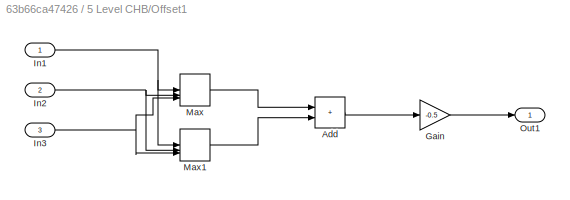
BLOCK [SubSystem] 5 Level CHB/Offset1
BLOCK [Sum] 5 Level CHB/Offset1/Add
  IconShape = rectangular
BLOCK [Gain] 5 Level CHB/Offset1/Gain
  Gain = -0.5
BLOCK [Inport] 5 Level CHB/Offset1/In1
BLOCK [Inport] 5 Level CHB/Offset1/In2
  Port = 2
BLOCK [Inport] 5 Level CHB/Offset1/In3
  Port = 3
BLOCK [MinMax] 5 Level CHB/Offset1/Max
  Function = max
  Inputs = 3
BLOCK [MinMax] 5 Level CHB/Offset1/Max1
  Inputs = 3
BLOCK [Outport] 5 Level CHB/Offset1/Out1
BLOCK [Outport] 5 Level CHB/Outport
BLOCK [Product] 5 Level CHB/Product
  Inputs = */
BLOCK [Scope] 5 Level CHB/Scope
  Floating = off
  NumInputPorts = 7
  ScopeSpecificationString = Simulink.scopes.TimeScopeBlockCfg('CurrentConfiguration', extmgr.ConfigurationSet(extmgr.Configuration('Core','General UI',true),extmgr.Configuration('Core','Source UI',true),extmgr.Configuration('Sources','WiredSimulink',true,'DataLoggingVariableName','ScopeData2'),extmgr.Configuration('Visuals','Time Domain',true,'SerializedDisplays',{struct('MinYLimReal','93.9162','MaxYLimReal','317.89914','YLa...<+6448ch>
BLOCK [Scope] 5 Level CHB/Scope1
  Floating = off
  NumInputPorts = 3
  ScopeSpecificationString = Simulink.scopes.TimeScopeBlockCfg('CurrentConfiguration', extmgr.ConfigurationSet(extmgr.Configuration('Core','General UI',true,'FigureColor',[1 1 1]),extmgr.Configuration('Core','Source UI',true),extmgr.Configuration('Sources','WiredSimulink',true,'DataLoggingVariableName','ScopeData1'),extmgr.Configuration('Visuals','Time Domain',true,'SerializedDisplays',{struct('MinYLimReal','-346.03514','MaxY...<+3216ch>
BLOCK [Scope] 5 Level CHB/Scope3
  Floating = off
  NumInputPorts = 7
  ScopeSpecificationString = Simulink.scopes.TimeScopeBlockCfg('CurrentConfiguration', extmgr.ConfigurationSet(extmgr.Configuration('Core','General UI',true,'FigureColor',[1 1 1]),extmgr.Configuration('Core','Source UI',true),extmgr.Configuration('Sources','WiredSimulink',true,'DataLoggingVariableName','ScopeData6'),extmgr.Configuration('Visuals','Time Domain',true,'SerializedDisplays',{struct('MinYLimReal','-423.5576','MaxYL...<+8413ch>
BLOCK [Scope] 5 Level CHB/Scope5
  Floating = off
  NumInputPorts = 7
  ScopeSpecificationString = Simulink.scopes.TimeScopeBlockCfg('CurrentConfiguration', extmgr.ConfigurationSet(extmgr.Configuration('Core','General UI',true,'FigureColor',[1 1 1]),extmgr.Configuration('Core','Source UI',true),extmgr.Configuration('Sources','WiredSimulink',true,'DataLoggingVariableName','ScopeData5'),extmgr.Configuration('Visuals','Time Domain',true,'SerializedDisplays',{struct('MinYLimReal','144.02912','MaxYL...<+6748ch>
BLOCK [Reference] 5 Level CHB/Series RLC Branch  REF=spsSeriesRLCBranchLib/Series RLC Branch
  LibrarySourceBlock = sps_lib/Passives/Series RLC Branch
  NameLocation = left
  SourceBlock = spsSeriesRLCBranchLib/Series RLC Branch
  SourceType = Series RLC Branch
BLOCK [Reference] 5 Level CHB/Series RLC Branch1  REF=spsSeriesRLCBranchLib/Series RLC Branch
  LibrarySourceBlock = sps_lib/Passives/Series RLC Branch
  NameLocation = left
  SourceBlock = spsSeriesRLCBranchLib/Series RLC Branch
  SourceType = Series RLC Branch
BLOCK [Reference] 5 Level CHB/Series RLC Branch2  REF=spsSeriesRLCBranchLib/Series RLC Branch
  LibrarySourceBlock = sps_lib/Passives/Series RLC Branch
  NameLocation = left
  SourceBlock = spsSeriesRLCBranchLib/Series RLC Branch
  SourceType = Series RLC Branch
BLOCK [Reference] 5 Level CHB/Series RLC Branch3  REF=spsSeriesRLCBranchLib/Series RLC Branch
  LibrarySourceBlock = sps_lib/Passives/Series RLC Branch
  NameLocation = left
  SourceBlock = spsSeriesRLCBranchLib/Series RLC Branch
  SourceType = Series RLC Branch
BLOCK [Reference] 5 Level CHB/Series RLC Branch4  REF=spsSeriesRLCBranchLib/Series RLC Branch
  LibrarySourceBlock = sps_lib/Passives/Series RLC Branch
  NameLocation = left
  SourceBlock = spsSeriesRLCBranchLib/Series RLC Branch
  SourceType = Series RLC Branch
BLOCK [Reference] 5 Level CHB/Series RLC Branch5  REF=spsSeriesRLCBranchLib/Series RLC Branch
  LibrarySourceBlock = sps_lib/Passives/Series RLC Branch
  NameLocation = left
  SourceBlock = spsSeriesRLCBranchLib/Series RLC Branch
  SourceType = Series RLC Branch
BLOCK [Step] 5 Level CHB/Step
  After = 5
  SampleTime = 0
  Time = 0.7
BLOCK [Sum] 5 Level CHB/Sum
  IconShape = rectangular
  Inputs = |++++++
BLOCK [Reference] 5 Level CHB/Voltage Measurement  REF=spsVoltageMeasurementLib/Voltage Measurement
  LibrarySourceBlock = sps_lib/Sensors and Measurements/Voltage Measurement
  SourceBlock = spsVoltageMeasurementLib/Voltage Measurement
  SourceType = Voltage Measurement
  UserDataPersistent = on
BLOCK [Reference] 5 Level CHB/Voltage Measurement1  REF=spsVoltageMeasurementLib/Voltage Measurement
  LibrarySourceBlock = sps_lib/Sensors and Measurements/Voltage Measurement
  SourceBlock = spsVoltageMeasurementLib/Voltage Measurement
  SourceType = Voltage Measurement
  UserDataPersistent = on
BLOCK [Reference] 5 Level CHB/Voltage Measurement2  REF=spsVoltageMeasurementLib/Voltage Measurement
  LibrarySourceBlock = sps_lib/Sensors and Measurements/Voltage Measurement
  SourceBlock = spsVoltageMeasurementLib/Voltage Measurement
  SourceType = Voltage Measurement
  UserDataPersistent = on
BLOCK [Reference] 5 Level CHB/Voltage Measurement3  REF=spsVoltageMeasurementLib/Voltage Measurement
  LibrarySourceBlock = sps_lib/Sensors and Measurements/Voltage Measurement
  SourceBlock = spsVoltageMeasurementLib/Voltage Measurement
  SourceType = Voltage Measurement
  UserDataPersistent = on
BLOCK [Reference] 5 Level CHB/Voltage Measurement4  REF=spsVoltageMeasurementLib/Voltage Measurement
  LibrarySourceBlock = sps_lib/Sensors and Measurements/Voltage Measurement
  SourceBlock = spsVoltageMeasurementLib/Voltage Measurement
  SourceType = Voltage Measurement
  UserDataPersistent = on
BLOCK [Reference] 5 Level CHB/Voltage Measurement5  REF=spsVoltageMeasurementLib/Voltage Measurement
  LibrarySourceBlock = sps_lib/Sensors and Measurements/Voltage Measurement
  SourceBlock = spsVoltageMeasurementLib/Voltage Measurement
  SourceType = Voltage Measurement
  UserDataPersistent = on
BLOCK [Reference] 5 Level CHB/Voltage Measurement6  REF=spsVoltageMeasurementLib/Voltage Measurement
  LibrarySourceBlock = sps_lib/Sensors and Measurements/Voltage Measurement
  SourceBlock = spsVoltageMeasurementLib/Voltage Measurement
  SourceType = Voltage Measurement
  UserDataPersistent = on
BLOCK [Reference] 5 Level CHB/Voltage Measurement7  REF=spsVoltageMeasurementLib/Voltage Measurement
  LibrarySourceBlock = sps_lib/Sensors and Measurements/Voltage Measurement
  SourceBlock = spsVoltageMeasurementLib/Voltage Measurement
  SourceType = Voltage Measurement
  UserDataPersistent = on
BLOCK [Reference] 5 Level CHB/Voltage Measurement8  REF=spsVoltageMeasurementLib/Voltage Measurement
  LibrarySourceBlock = sps_lib/Sensors and Measurements/Voltage Measurement
  SourceBlock = spsVoltageMeasurementLib/Voltage Measurement
  SourceType = Voltage Measurement
  UserDataPersistent = on
BLOCK [Constant] Constant
  Value = 200
BLOCK [Demux] Demux
  Outputs = 3
BLOCK [Demux] Demux1
  Outputs = 3
BLOCK [Demux] Demux2
  Outputs = 3
BLOCK [From] From
  GotoTag = Vg
  TagVisibility = global
BLOCK [From] From1
  GotoTag = Ig
  TagVisibility = global
BLOCK [From] From10
  GotoTag = Iq
BLOCK [From] From11
  GotoTag = Id
BLOCK [From] From12
  GotoTag = wt
BLOCK [From] From13
  GotoTag = Vabc
BLOCK [From] From14
  GotoTag = Vconv
  TagVisibility = global
BLOCK [From] From15
  GotoTag = Iconv
  TagVisibility = global
BLOCK [From] From16
  GotoTag = VL
  TagVisibility = global
BLOCK [From] From17
  GotoTag = IL
  TagVisibility = global
BLOCK [From] From18
  GotoTag = Vconv
  TagVisibility = global
BLOCK [From] From19
  GotoTag = Iconv
  TagVisibility = global
BLOCK [From] From2
  GotoTag = Vg
  TagVisibility = global
BLOCK [From] From20
  GotoTag = Vg
  TagVisibility = global
BLOCK [From] From21
  GotoTag = Ig
  TagVisibility = global
BLOCK [From] From22
  GotoTag = P_Conv
BLOCK [From] From23
  GotoTag = QL
BLOCK [From] From24
  GotoTag = IL
  TagVisibility = global
BLOCK [From] From25
  GotoTag = Q_Conv
BLOCK [From] From26
  GotoTag = P_grid
BLOCK [From] From27
  GotoTag = Q_grid
BLOCK [From] From28
  GotoTag = PL
BLOCK [From] From29
  GotoTag = QL
BLOCK [From] From3
  GotoTag = VdcAvg
BLOCK [From] From30
  GotoTag = P_Conv
BLOCK [From] From31
  GotoTag = Q_Conv
BLOCK [From] From32
  GotoTag = VdcAvg
BLOCK [From] From33
  GotoTag = P_Conv
BLOCK [From] From34
  GotoTag = Q_Conv
BLOCK [From] From35
  GotoTag = Id_ref
BLOCK [From] From36
  GotoTag = Iq_ref
BLOCK [From] From37
  GotoTag = VdcAvg
BLOCK [From] From4
  GotoTag = Vd
  NameLocation = right
BLOCK [From] From5
  GotoTag = Iconv
  TagVisibility = global
BLOCK [From] From6
  GotoTag = wt
BLOCK [From] From7
  GotoTag = Id
  NameLocation = right
BLOCK [From] From8
  GotoTag = Iq
BLOCK [From] From9
  GotoTag = Vd
BLOCK [Gain] Gain1
  Gain = 2/3
BLOCK [Gain] Gain2
  Gain = -1
BLOCK [Gain] Gain3
  Gain = 2*pi*50*0.00548
BLOCK [Gain] Gain4
  Gain = 2*pi*50*0.00548
BLOCK [Gain] Gain5
  Gain = 1/400
BLOCK [Goto] Goto
  GotoTag = Vd
BLOCK [Goto] Goto1
  GotoTag = Vq
BLOCK [Goto] Goto10
  GotoTag = Q_Conv
BLOCK [Goto] Goto11
  GotoTag = P_grid
BLOCK [Goto] Goto12
  GotoTag = Q_grid
BLOCK [Goto] Goto13
  GotoTag = Id_ref
BLOCK [Goto] Goto14
  GotoTag = Iq_ref
BLOCK [Goto] Goto2
  GotoTag = wt
BLOCK [Goto] Goto3
  GotoTag = Id
BLOCK [Goto] Goto4
  GotoTag = Iq
BLOCK [Goto] Goto5
  GotoTag = Vabc
BLOCK [Goto] Goto6
  GotoTag = PL
BLOCK [Goto] Goto7
  GotoTag = QL
BLOCK [Goto] Goto8
  GotoTag = VdcAvg
BLOCK [Goto] Goto9
  GotoTag = P_Conv
BLOCK [Mux] Mux1
  DisplayOption = bar
  Inputs = 3
BLOCK [Reference] PID Controller  REF=slpidlib/PID Controller
  LibrarySourceBlock = simulink/Continuous/PID Controller
  SourceBlock = slpidlib/PID Controller
  SourceType = PID 1dof
BLOCK [Reference] PID Controller1  REF=slpidlib/PID Controller
  LibrarySourceBlock = simulink/Continuous/PID Controller
  SourceBlock = slpidlib/PID Controller
  SourceType = PID 1dof
BLOCK [Reference] PID Controller3  REF=slpidlib/PID Controller
  LibrarySourceBlock = simulink/Continuous/PID Controller
  SourceBlock = slpidlib/PID Controller
  SourceType = PID 1dof
BLOCK [Display] PL
  Decimation = 1
BLOCK [Reference] PLL (3ph)  REF=spsPLL3phLib/PLL
(3ph)
  LibrarySourceBlock = sps_lib/Control/PLL\n(3ph)
  SourceBlock = spsPLL3phLib/PLL\n(3ph)
  SourceType = PLL (3ph)
BLOCK [Display] Pconv
  Decimation = 1
BLOCK [Display] Pgrid
  Decimation = 1
BLOCK [Reference] Power Measurement (Three-Phase)  REF=eePowerMeasurement/Power Measurement
(Three-Phase)
  LibrarySourceBlock = ee_sl_lib/Measurements/Power Measurement\n(Three-Phase)
  SourceBlock = eePowerMeasurement/Power Measurement\n(Three-Phase)
  SourceType = Power Measurement (Three-Phase)
BLOCK [Reference] Power Measurement (Three-Phase)1  REF=eePowerMeasurement/Power Measurement
(Three-Phase)
  LibrarySourceBlock = ee_sl_lib/Measurements/Power Measurement\n(Three-Phase)
  SourceBlock = eePowerMeasurement/Power Measurement\n(Three-Phase)
  SourceType = Power Measurement (Three-Phase)
BLOCK [Reference] Power Measurement (Three-Phase)2  REF=eePowerMeasurement/Power Measurement
(Three-Phase)
  LibrarySourceBlock = ee_sl_lib/Measurements/Power Measurement\n(Three-Phase)
  SourceBlock = eePowerMeasurement/Power Measurement\n(Three-Phase)
  SourceType = Power Measurement (Three-Phase)
BLOCK [Product] Product1
  Inputs = */
BLOCK [Display] QL
  Decimation = 1
BLOCK [Display] Qconv
  Decimation = 1
BLOCK [Display] Qgrid
  Decimation = 1
BLOCK [Scope] Scope1
  Floating = off
  NumInputPorts = 2
  ScopeSpecificationString = Simulink.scopes.TimeScopeBlockCfg('CurrentConfiguration', extmgr.ConfigurationSet(extmgr.Configuration('Core','General UI',true),extmgr.Configuration('Core','Source UI',true),extmgr.Configuration('Sources','WiredSimulink',true,'DataLoggingVariableName','ScopeData1'),extmgr.Configuration('Visuals','Time Domain',true,'SerializedDisplays',{struct('MinYLimReal','-1250.00000','MaxYLimReal','11250.00000...<+2120ch>
BLOCK [Scope] Scope2
  Floating = off
  NumInputPorts = 2
  ScopeSpecificationString = Simulink.scopes.TimeScopeBlockCfg('CurrentConfiguration', extmgr.ConfigurationSet(extmgr.Configuration('Core','General UI',true),extmgr.Configuration('Core','Source UI',true),extmgr.Configuration('Sources','WiredSimulink',true,'DataLoggingVariableName','ScopeData2'),extmgr.Configuration('Visuals','Time Domain',true,'SerializedDisplays',{struct('MinYLimReal','-10643.20224','MaxYLimReal','1485.26','...<+2090ch>
BLOCK [Scope] Scope3
  Floating = off
  NumInputPorts = 2
  ScopeSpecificationString = Simulink.scopes.TimeScopeBlockCfg('CurrentConfiguration', extmgr.ConfigurationSet(extmgr.Configuration('Core','General UI',true),extmgr.Configuration('Core','Source UI',true),extmgr.Configuration('Sources','WiredSimulink',true,'DataLoggingVariableName','ScopeData3'),extmgr.Configuration('Visuals','Time Domain',true,'SerializedDisplays',{struct('MinYLimReal','-37105.9153','MaxYLimReal','58244.15933...<+2094ch>
BLOCK [Scope] Scope4
  Floating = off
  NumInputPorts = 7
  ScopeSpecificationString = Simulink.scopes.TimeScopeBlockCfg('CurrentConfiguration', extmgr.ConfigurationSet(extmgr.Configuration('Core','General UI',true,'FigureColor',[1 1 1]),extmgr.Configuration('Core','Source UI',true),extmgr.Configuration('Sources','WiredSimulink',true,'DataLoggingVariableName','ScopeData4'),extmgr.Configuration('Visuals','Time Domain',true,'SerializedDisplays',{struct('MinYLimReal','2813.98117','MaxY...<+8230ch>
BLOCK [Scope] Scope5
  Floating = off
  NumInputPorts = 7
  ScopeSpecificationString = Simulink.scopes.TimeScopeBlockCfg('CurrentConfiguration', extmgr.ConfigurationSet(extmgr.Configuration('Core','General UI',true,'FigureColor',[1 1 1]),extmgr.Configuration('Core','Source UI',true),extmgr.Configuration('Sources','WiredSimulink',true,'DataLoggingVariableName','ScopeData3'),extmgr.Configuration('Visuals','Time Domain',true,'SerializedDisplays',{struct('MinYLimReal','-423.5576','MaxYL...<+8410ch>
BLOCK [Scope] Scope6
  Floating = off
  NumInputPorts = 5
  ScopeSpecificationString = Simulink.scopes.TimeScopeBlockCfg('CurrentConfiguration', extmgr.ConfigurationSet(extmgr.Configuration('Core','General UI',true,'FigureColor',[1 1 1]),extmgr.Configuration('Core','Source UI',true),extmgr.Configuration('Sources','WiredSimulink',true,'DataLoggingVariableName','ScopeData2'),extmgr.Configuration('Visuals','Time Domain',true,'SerializedDisplays',{struct('MinYLimReal','-10893.52534','Ma...<+6659ch>
BLOCK [Reference] Series RLC Branch3  REF=spsSeriesRLCBranchLib/Series RLC Branch
  LibrarySourceBlock = sps_lib/Passives/Series RLC Branch
  SourceBlock = spsSeriesRLCBranchLib/Series RLC Branch
  SourceType = Series RLC Branch
BLOCK [Reference] Series RLC Branch4  REF=spsSeriesRLCBranchLib/Series RLC Branch
  LibrarySourceBlock = sps_lib/Passives/Series RLC Branch
  SourceBlock = spsSeriesRLCBranchLib/Series RLC Branch
  SourceType = Series RLC Branch
BLOCK [Reference] Series RLC Branch5  REF=spsSeriesRLCBranchLib/Series RLC Branch
  LibrarySourceBlock = sps_lib/Passives/Series RLC Branch
  SourceBlock = spsSeriesRLCBranchLib/Series RLC Branch
  SourceType = Series RLC Branch
BLOCK [Sum] Sum
  Inputs = |+-
BLOCK [Sum] Sum1
  Inputs = |+-
BLOCK [Sum] Sum2
  Inputs = |+-
BLOCK [Sum] Sum3
  Inputs = |++
BLOCK [Sum] Sum4
  Inputs = |++
BLOCK [Sum] Sum5
  Inputs = |+-
BLOCK [Reference] Three-Phase Series RLC Load  REF=spsThreePhaseSeriesRLCLoadLib/Three-Phase
Series RLC Load
  AttributesFormatString = \n
  LibrarySourceBlock = sps_lib/Passives/Three-Phase\nSeries RLC Load
  NameLocation = right
  SourceBlock = spsThreePhaseSeriesRLCLoadLib/Three-Phase\nSeries RLC Load
  SourceType = Three-Phase Series RLC Load
BLOCK [Reference] Three-Phase Source  REF=spsThreePhaseSourceLib/Three-Phase Source
  LibrarySourceBlock = sps_lib/Sources/Three-Phase Source
  NameLocation = top
  SourceBlock = spsThreePhaseSourceLib/Three-Phase Source
  SourceType = Three-Phase Source
BLOCK [Reference] Three-Phase V-I Measurement1  REF=spsThreePhaseVIMeasurementLib/Three-Phase
V-I Measurement
  LibrarySourceBlock = sps_lib/Sensors and Measurements/Three-Phase\nV-I Measurement
  SourceBlock = spsThreePhaseVIMeasurementLib/Three-Phase\nV-I Measurement
  SourceType = Three-Phase VI Measurement
BLOCK [Reference] Three-Phase V-I Measurement2  REF=spsThreePhaseVIMeasurementLib/Three-Phase
V-I Measurement
  LibrarySourceBlock = sps_lib/Sensors and Measurements/Three-Phase\nV-I Measurement
  SourceBlock = spsThreePhaseVIMeasurementLib/Three-Phase\nV-I Measurement
  SourceType = Three-Phase VI Measurement
BLOCK [Reference] Three-Phase V-I Measurement3  REF=spsThreePhaseVIMeasurementLib/Three-Phase
V-I Measurement
  LibrarySourceBlock = sps_lib/Sensors and Measurements/Three-Phase\nV-I Measurement
  SourceBlock = spsThreePhaseVIMeasurementLib/Three-Phase\nV-I Measurement
  SourceType = Three-Phase VI Measurement
BLOCK [Reference] abc to dq0  REF=spsabctodq0Lib/abc to dq0
  LibrarySourceBlock = sps_lib/Control/abc to dq0
  SourceBlock = spsabctodq0Lib/abc to dq0
  SourceType = abc to dq0 Transformation
BLOCK [Reference] abc to dq1  REF=spsabctodq0Lib/abc to dq0
  LibrarySourceBlock = sps_lib/Control/abc to dq0
  SourceBlock = spsabctodq0Lib/abc to dq0
  SourceType = abc to dq0 Transformation
BLOCK [Reference] dq0 to abc  REF=spsdq0toabcLib/dq0 to abc
  LibrarySourceBlock = sps_lib/Control/dq0 to abc
  SourceBlock = spsdq0toabcLib/dq0 to abc
  SourceType = dq0 to abc Transformation
BLOCK [Reference] powergui  REF=spspowerguiLib/powergui
  LibrarySourceBlock = sps_lib/powergui
  Priority = 1
  SourceBlock = spspowerguiLib/powergui
  SourceType = PSB option menu block
ANNOTATION (root): ABC to DQ0 Transformation of Grid Voltage and Converter Currents
ANNOTATION (root): AC Load
ANNOTATION (root): Converter
ANNOTATION (root): D-Axis Current Controller
ANNOTATION (root): DC Voltge Controller
ANNOTATION (root): Grid
ANNOTATION (root): L Filter
ANNOTATION (root): Measurement Blocks
ANNOTATION (root): Nullfying Cross Coupling Term in Q-Axis
ANNOTATION (root): Nullifying Cross Coupling Term in D-Axis
ANNOTATION (root): Q-Axis Current Controller
ANNOTATION 5 Level CHB: Capacitor Voltage Average for Id ref generation
ANNOTATION 5 Level CHB: Level Shift PWM + CHB Cell Sorting Phase A
ANNOTATION 5 Level CHB: Level Shift PWM + CHB Cell Sorting Phase B
ANNOTATION 5 Level CHB: Level Shift PWM + CHB Cell Sorting Phase C
ANNOTATION 5 Level CHB: Load - Controlled current source is acting as a load in the DC side.
ANNOTATION 5 Level CHB: Phase A
ANNOTATION 5 Level CHB: Phase B
ANNOTATION 5 Level CHB: Phase C
ANNOTATION 5 Level CHB: SVPWM (Vmax + Vmin) / 2 Algorithm
ANNOTATION 5 Level CHB/Level Shift PWM + CHB Cell Sorting Phase A: Level Shift PWM
ANNOTATION 5 Level CHB/Level Shift PWM + CHB Cell Sorting Phase A: Sorting Algorithm
ANNOTATION 5 Level CHB/Level Shift PWM + CHB Cell Sorting Phase B: Level Shift PWM
ANNOTATION 5 Level CHB/Level Shift PWM + CHB Cell Sorting Phase B: Sorting Algorithm
ANNOTATION 5 Level CHB/Level Shift PWM + CHB Cell Sorting Phase C: Level Shift PWM
ANNOTATION 5 Level CHB/Level Shift PWM + CHB Cell Sorting Phase C: Sorting Algorithm
LINE 5 Level CHB/Add1:1 -> 5 Level CHB/Goto28:1
LINE 5 Level CHB/Add2:1 -> 5 Level CHB/Goto29:1
LINE 5 Level CHB/Add3:1 -> 5 Level CHB/Goto30:1
LINE 5 Level CHB/CHB Cell Sorting Freq:1 -> 5 Level CHB/Goto42:1
LINE 5 Level CHB/Constant:1 -> 5 Level CHB/Product:2
LINE 5 Level CHB/From10:1 -> 5 Level CHB/Mosfet4:1
LINE 5 Level CHB/From11:1 -> 5 Level CHB/Mosfet6:1
LINE 5 Level CHB/From12:1 -> 5 Level CHB/Mosfet5:1
LINE 5 Level CHB/From13:1 -> 5 Level CHB/Mosfet7:1
LINE 5 Level CHB/From14:1 -> 5 Level CHB/Mosfet8:1
LINE 5 Level CHB/From15:1 -> 5 Level CHB/Mosfet9:1
LINE 5 Level CHB/From16:1 -> 5 Level CHB/Mosfet11:1
LINE 5 Level CHB/From17:1 -> 5 Level CHB/Mosfet18:1
LINE 5 Level CHB/From18:1 -> 5 Level CHB/Mosfet22:1
LINE 5 Level CHB/From19:1 -> 5 Level CHB/Mosfet23:1
LINE 5 Level CHB/From1:1 -> 5 Level CHB/Mosfet12:1
LINE 5 Level CHB/From20:1 -> 5 Level CHB/Mosfet17:1
LINE 5 Level CHB/From21:1 -> 5 Level CHB/Mosfet20:1
LINE 5 Level CHB/From22:1 -> 5 Level CHB/Mosfet19:1
LINE 5 Level CHB/From23:1 -> 5 Level CHB/Mosfet21:1
LINE 5 Level CHB/From24:1 -> 5 Level CHB/Mosfet16:1
LINE 5 Level CHB/From25:1 -> 5 Level CHB/Offset1:3
LINE 5 Level CHB/From26:1 -> 5 Level CHB/Offset1:1
LINE 5 Level CHB/From27:1 -> 5 Level CHB/Offset1:2
LINE 5 Level CHB/From28:1 -> 5 Level CHB/Level Shift PWM + CHB Cell Sorting Phase B:1
LINE 5 Level CHB/From29:1 -> 5 Level CHB/Level Shift PWM + CHB Cell Sorting Phase C:1
LINE 5 Level CHB/From2:1 -> 5 Level CHB/Mosfet2:1
NET 5 Level CHB/From30:1 -> 5 Level CHB/Scope5:2, 5 Level CHB/Scope:2, 5 Level CHB/Sum:1
NET 5 Level CHB/From31:1 -> 5 Level CHB/Scope5:3, 5 Level CHB/Scope:3, 5 Level CHB/Sum:2
LINE 5 Level CHB/From32:1 -> 5 Level CHB/Add1:2
LINE 5 Level CHB/From33:1 -> 5 Level CHB/Add1:1
LINE 5 Level CHB/From34:1 -> 5 Level CHB/Add2:1
LINE 5 Level CHB/From35:1 -> 5 Level CHB/Add2:2
LINE 5 Level CHB/From36:1 -> 5 Level CHB/Add3:2
LINE 5 Level CHB/From37:1 -> 5 Level CHB/Add3:1
NET 5 Level CHB/From38:1 -> 5 Level CHB/Scope:4, 5 Level CHB/Sum:3
NET 5 Level CHB/From39:1 -> 5 Level CHB/Scope:5, 5 Level CHB/Sum:4
LINE 5 Level CHB/From3:1 -> 5 Level CHB/Mosfet:1
NET 5 Level CHB/From40:1 -> 5 Level CHB/Scope:6, 5 Level CHB/Sum:5
NET 5 Level CHB/From41:1 -> 5 Level CHB/Scope:7, 5 Level CHB/Sum:6
LINE 5 Level CHB/From42:1 -> 5 Level CHB/Controlled Current Source:1
LINE 5 Level CHB/From43:1 -> 5 Level CHB/Controlled Current Source1:1
LINE 5 Level CHB/From44:1 -> 5 Level CHB/Controlled Current Source3:1
LINE 5 Level CHB/From45:1 -> 5 Level CHB/Controlled Current Source4:1
LINE 5 Level CHB/From46:1 -> 5 Level CHB/Controlled Current Source5:1
LINE 5 Level CHB/From47:1 -> 5 Level CHB/Controlled Current Source6:1
NET 5 Level CHB/From48:1 -> 5 Level CHB/Scope5:1, 5 Level CHB/Scope:1
NET 5 Level CHB/From49:1 -> 5 Level CHB/Scope1:2, 5 Level CHB/Scope3:2
LINE 5 Level CHB/From4:1 -> 5 Level CHB/Mosfet14:1
NET 5 Level CHB/From50:1 -> 5 Level CHB/Scope1:1, 5 Level CHB/Scope3:1
NET 5 Level CHB/From51:1 -> 5 Level CHB/Scope1:3, 5 Level CHB/Scope3:3
LINE 5 Level CHB/From52:1 -> 5 Level CHB/Level Shift PWM + CHB Cell Sorting Phase A:2
LINE 5 Level CHB/From53:1 -> 5 Level CHB/Level Shift PWM + CHB Cell Sorting Phase B:2
LINE 5 Level CHB/From54:1 -> 5 Level CHB/Level Shift PWM + CHB Cell Sorting Phase C:2
LINE 5 Level CHB/From5:1 -> 5 Level CHB/Mosfet13:1
LINE 5 Level CHB/From6:1 -> 5 Level CHB/Mosfet15:1
LINE 5 Level CHB/From7:1 -> 5 Level CHB/Mosfet10:1
LINE 5 Level CHB/From8:1 -> 5 Level CHB/Mosfet1:1
LINE 5 Level CHB/From9:1 -> 5 Level CHB/Mosfet3:1
LINE 5 Level CHB/From:1 -> 5 Level CHB/Level Shift PWM + CHB Cell Sorting Phase A:1
LINE 5 Level CHB/In1:1 -> 5 Level CHB/Goto:1
LINE 5 Level CHB/In2:1 -> 5 Level CHB/Goto25:1
LINE 5 Level CHB/In3:1 -> 5 Level CHB/Goto26:1
LINE 5 Level CHB/Level Shift PWM + CHB Cell Sorting Phase A/Constant1:1 -> 5 Level CHB/Level Shift PWM + CHB Cell Sorting Phase A/Sum2:2
LINE 5 Level CHB/Level Shift PWM + CHB Cell Sorting Phase A/Constant2:1 -> 5 Level CHB/Level Shift PWM + CHB Cell Sorting Phase A/Sum3:2
LINE 5 Level CHB/Level Shift PWM + CHB Cell Sorting Phase A/Constant3:1 -> 5 Level CHB/Level Shift PWM + CHB Cell Sorting Phase A/Sum1:2
LINE 5 Level CHB/Level Shift PWM + CHB Cell Sorting Phase A/Constant:1 -> 5 Level CHB/Level Shift PWM + CHB Cell Sorting Phase A/Sum:2
LINE 5 Level CHB/Level Shift PWM + CHB Cell Sorting Phase A/Demux1:1 -> 5 Level CHB/Level Shift PWM + CHB Cell Sorting Phase A/Out5:1
LINE 5 Level CHB/Level Shift PWM + CHB Cell Sorting Phase A/Demux1:2 -> 5 Level CHB/Level Shift PWM + CHB Cell Sorting Phase A/Out6:1
LINE 5 Level CHB/Level Shift PWM + CHB Cell Sorting Phase A/Demux1:3 -> 5 Level CHB/Level Shift PWM + CHB Cell Sorting Phase A/Out7:1
LINE 5 Level CHB/Level Shift PWM + CHB Cell Sorting Phase A/Demux1:4 -> 5 Level CHB/Level Shift PWM + CHB Cell Sorting Phase A/Out8:1
LINE 5 Level CHB/Level Shift PWM + CHB Cell Sorting Phase A/Demux:1 -> 5 Level CHB/Level Shift PWM + CHB Cell Sorting Phase A/Out1:1
LINE 5 Level CHB/Level Shift PWM + CHB Cell Sorting Phase A/Demux:2 -> 5 Level CHB/Level Shift PWM + CHB Cell Sorting Phase A/Out2:1
LINE 5 Level CHB/Level Shift PWM + CHB Cell Sorting Phase A/Demux:3 -> 5 Level CHB/Level Shift PWM + CHB Cell Sorting Phase A/Out3:1
LINE 5 Level CHB/Level Shift PWM + CHB Cell Sorting Phase A/Demux:4 -> 5 Level CHB/Level Shift PWM + CHB Cell Sorting Phase A/Out4:1
LINE 5 Level CHB/Level Shift PWM + CHB Cell Sorting Phase A/From1:1 -> 5 Level CHB/Level Shift PWM + CHB Cell Sorting Phase A/Relational Operator1:1
LINE 5 Level CHB/Level Shift PWM + CHB Cell Sorting Phase A/From2:1 -> 5 Level CHB/Level Shift PWM + CHB Cell Sorting Phase A/Multiport Switch:1
LINE 5 Level CHB/Level Shift PWM + CHB Cell Sorting Phase A/From3:1 -> 5 Level CHB/Level Shift PWM + CHB Cell Sorting Phase A/Multiport Switch1:1
LINE 5 Level CHB/Level Shift PWM + CHB Cell Sorting Phase A/From4:1 -> 5 Level CHB/Level Shift PWM + CHB Cell Sorting Phase A/Relational Operator2:1
LINE 5 Level CHB/Level Shift PWM + CHB Cell Sorting Phase A/From5:1 -> 5 Level CHB/Level Shift PWM + CHB Cell Sorting Phase A/Relational Operator3:1
LINE 5 Level CHB/Level Shift PWM + CHB Cell Sorting Phase A/From6:1 -> 5 Level CHB/Level Shift PWM + CHB Cell Sorting Phase A/Sum2:1
LINE 5 Level CHB/Level Shift PWM + CHB Cell Sorting Phase A/From7:1 -> 5 Level CHB/Level Shift PWM + CHB Cell Sorting Phase A/Sum3:1
LINE 5 Level CHB/Level Shift PWM + CHB Cell Sorting Phase A/From8:1 -> 5 Level CHB/Level Shift PWM + CHB Cell Sorting Phase A/Sum1:1
LINE 5 Level CHB/Level Shift PWM + CHB Cell Sorting Phase A/From:1 -> 5 Level CHB/Level Shift PWM + CHB Cell Sorting Phase A/Relational Operator:1
LINE 5 Level CHB/Level Shift PWM + CHB Cell Sorting Phase A/In1:1 -> 5 Level CHB/Level Shift PWM + CHB Cell Sorting Phase A/Goto:1
LINE 5 Level CHB/Level Shift PWM + CHB Cell Sorting Phase A/In2:1 -> 5 Level CHB/Level Shift PWM + CHB Cell Sorting Phase A/Goto2:1
LINE 5 Level CHB/Level Shift PWM + CHB Cell Sorting Phase A/Logical Operator1:1 -> 5 Level CHB/Level Shift PWM + CHB Cell Sorting Phase A/Mux:4
LINE 5 Level CHB/Level Shift PWM + CHB Cell Sorting Phase A/Logical Operator2:1 -> 5 Level CHB/Level Shift PWM + CHB Cell Sorting Phase A/Mux1:2
LINE 5 Level CHB/Level Shift PWM + CHB Cell Sorting Phase A/Logical Operator3:1 -> 5 Level CHB/Level Shift PWM + CHB Cell Sorting Phase A/Mux1:4
LINE 5 Level CHB/Level Shift PWM + CHB Cell Sorting Phase A/Logical Operator:1 -> 5 Level CHB/Level Shift PWM + CHB Cell Sorting Phase A/Mux:2
LINE 5 Level CHB/Level Shift PWM + CHB Cell Sorting Phase A/Multiport Switch1:1 -> 5 Level CHB/Level Shift PWM + CHB Cell Sorting Phase A/Demux1:1
LINE 5 Level CHB/Level Shift PWM + CHB Cell Sorting Phase A/Multiport Switch:1 -> 5 Level CHB/Level Shift PWM + CHB Cell Sorting Phase A/Demux:1
NET 5 Level CHB/Level Shift PWM + CHB Cell Sorting Phase A/Mux1:1 -> 5 Level CHB/Level Shift PWM + CHB Cell Sorting Phase A/Multiport Switch1:2, 5 Level CHB/Level Shift PWM + CHB Cell Sorting Phase A/Multiport Switch:3
NET 5 Level CHB/Level Shift PWM + CHB Cell Sorting Phase A/Mux:1 -> 5 Level CHB/Level Shift PWM + CHB Cell Sorting Phase A/Multiport Switch1:3, 5 Level CHB/Level Shift PWM + CHB Cell Sorting Phase A/Multiport Switch:2
NET 5 Level CHB/Level Shift PWM + CHB Cell Sorting Phase A/Relational Operator1:1 -> 5 Level CHB/Level Shift PWM + CHB Cell Sorting Phase A/Logical Operator1:1, 5 Level CHB/Level Shift PWM + CHB Cell Sorting Phase A/Mux:3
NET 5 Level CHB/Level Shift PWM + CHB Cell Sorting Phase A/Relational Operator2:1 -> 5 Level CHB/Level Shift PWM + CHB Cell Sorting Phase A/Logical Operator2:1, 5 Level CHB/Level Shift PWM + CHB Cell Sorting Phase A/Mux1:1
NET 5 Level CHB/Level Shift PWM + CHB Cell Sorting Phase A/Relational Operator3:1 -> 5 Level CHB/Level Shift PWM + CHB Cell Sorting Phase A/Logical Operator3:1, 5 Level CHB/Level Shift PWM + CHB Cell Sorting Phase A/Mux1:3
NET 5 Level CHB/Level Shift PWM + CHB Cell Sorting Phase A/Relational Operator:1 -> 5 Level CHB/Level Shift PWM + CHB Cell Sorting Phase A/Logical Operator:1, 5 Level CHB/Level Shift PWM + CHB Cell Sorting Phase A/Mux:1
NET 5 Level CHB/Level Shift PWM + CHB Cell Sorting Phase A/Repeating Sequence:1 -> 5 Level CHB/Level Shift PWM + CHB Cell Sorting Phase A/Goto9:1, 5 Level CHB/Level Shift PWM + CHB Cell Sorting Phase A/Relational Operator:2, 5 Level CHB/Level Shift PWM + CHB Cell Sorting Phase A/Sum:1
LINE 5 Level CHB/Level Shift PWM + CHB Cell Sorting Phase A/Sum1:1 -> 5 Level CHB/Level Shift PWM + CHB Cell Sorting Phase A/Goto1:1
LINE 5 Level CHB/Level Shift PWM + CHB Cell Sorting Phase A/Sum2:1 -> 5 Level CHB/Level Shift PWM + CHB Cell Sorting Phase A/Relational Operator2:2
LINE 5 Level CHB/Level Shift PWM + CHB Cell Sorting Phase A/Sum3:1 -> 5 Level CHB/Level Shift PWM + CHB Cell Sorting Phase A/Relational Operator3:2
LINE 5 Level CHB/Level Shift PWM + CHB Cell Sorting Phase A/Sum:1 -> 5 Level CHB/Level Shift PWM + CHB Cell Sorting Phase A/Relational Operator1:2
LINE 5 Level CHB/Level Shift PWM + CHB Cell Sorting Phase A:1 -> 5 Level CHB/Goto2:1
LINE 5 Level CHB/Level Shift PWM + CHB Cell Sorting Phase A:2 -> 5 Level CHB/Goto1:1
LINE 5 Level CHB/Level Shift PWM + CHB Cell Sorting Phase A:3 -> 5 Level CHB/Goto4:1
LINE 5 Level CHB/Level Shift PWM + CHB Cell Sorting Phase A:4 -> 5 Level CHB/Goto3:1
LINE 5 Level CHB/Level Shift PWM + CHB Cell Sorting Phase A:5 -> 5 Level CHB/Goto6:1
LINE 5 Level CHB/Level Shift PWM + CHB Cell Sorting Phase A:6 -> 5 Level CHB/Goto5:1
LINE 5 Level CHB/Level Shift PWM + CHB Cell Sorting Phase A:7 -> 5 Level CHB/Goto8:1
LINE 5 Level CHB/Level Shift PWM + CHB Cell Sorting Phase A:8 -> 5 Level CHB/Goto7:1
LINE 5 Level CHB/Level Shift PWM + CHB Cell Sorting Phase B/Constant1:1 -> 5 Level CHB/Level Shift PWM + CHB Cell Sorting Phase B/Sum2:2
LINE 5 Level CHB/Level Shift PWM + CHB Cell Sorting Phase B/Constant2:1 -> 5 Level CHB/Level Shift PWM + CHB Cell Sorting Phase B/Sum3:2
LINE 5 Level CHB/Level Shift PWM + CHB Cell Sorting Phase B/Constant3:1 -> 5 Level CHB/Level Shift PWM + CHB Cell Sorting Phase B/Sum1:2
LINE 5 Level CHB/Level Shift PWM + CHB Cell Sorting Phase B/Constant:1 -> 5 Level CHB/Level Shift PWM + CHB Cell Sorting Phase B/Sum:2
LINE 5 Level CHB/Level Shift PWM + CHB Cell Sorting Phase B/Demux1:1 -> 5 Level CHB/Level Shift PWM + CHB Cell Sorting Phase B/Out5:1
LINE 5 Level CHB/Level Shift PWM + CHB Cell Sorting Phase B/Demux1:2 -> 5 Level CHB/Level Shift PWM + CHB Cell Sorting Phase B/Out6:1
LINE 5 Level CHB/Level Shift PWM + CHB Cell Sorting Phase B/Demux1:3 -> 5 Level CHB/Level Shift PWM + CHB Cell Sorting Phase B/Out7:1
LINE 5 Level CHB/Level Shift PWM + CHB Cell Sorting Phase B/Demux1:4 -> 5 Level CHB/Level Shift PWM + CHB Cell Sorting Phase B/Out8:1
LINE 5 Level CHB/Level Shift PWM + CHB Cell Sorting Phase B/Demux:1 -> 5 Level CHB/Level Shift PWM + CHB Cell Sorting Phase B/Out1:1
LINE 5 Level CHB/Level Shift PWM + CHB Cell Sorting Phase B/Demux:2 -> 5 Level CHB/Level Shift PWM + CHB Cell Sorting Phase B/Out2:1
LINE 5 Level CHB/Level Shift PWM + CHB Cell Sorting Phase B/Demux:3 -> 5 Level CHB/Level Shift PWM + CHB Cell Sorting Phase B/Out3:1
LINE 5 Level CHB/Level Shift PWM + CHB Cell Sorting Phase B/Demux:4 -> 5 Level CHB/Level Shift PWM + CHB Cell Sorting Phase B/Out4:1
LINE 5 Level CHB/Level Shift PWM + CHB Cell Sorting Phase B/From1:1 -> 5 Level CHB/Level Shift PWM + CHB Cell Sorting Phase B/Relational Operator1:1
LINE 5 Level CHB/Level Shift PWM + CHB Cell Sorting Phase B/From2:1 -> 5 Level CHB/Level Shift PWM + CHB Cell Sorting Phase B/Multiport Switch:1
LINE 5 Level CHB/Level Shift PWM + CHB Cell Sorting Phase B/From3:1 -> 5 Level CHB/Level Shift PWM + CHB Cell Sorting Phase B/Multiport Switch1:1
LINE 5 Level CHB/Level Shift PWM + CHB Cell Sorting Phase B/From4:1 -> 5 Level CHB/Level Shift PWM + CHB Cell Sorting Phase B/Relational Operator2:1
LINE 5 Level CHB/Level Shift PWM + CHB Cell Sorting Phase B/From5:1 -> 5 Level CHB/Level Shift PWM + CHB Cell Sorting Phase B/Relational Operator3:1
LINE 5 Level CHB/Level Shift PWM + CHB Cell Sorting Phase B/From6:1 -> 5 Level CHB/Level Shift PWM + CHB Cell Sorting Phase B/Sum2:1
LINE 5 Level CHB/Level Shift PWM + CHB Cell Sorting Phase B/From7:1 -> 5 Level CHB/Level Shift PWM + CHB Cell Sorting Phase B/Sum3:1
LINE 5 Level CHB/Level Shift PWM + CHB Cell Sorting Phase B/From:1 -> 5 Level CHB/Level Shift PWM + CHB Cell Sorting Phase B/Relational Operator:1
LINE 5 Level CHB/Level Shift PWM + CHB Cell Sorting Phase B/In1:1 -> 5 Level CHB/Level Shift PWM + CHB Cell Sorting Phase B/Goto:1
LINE 5 Level CHB/Level Shift PWM + CHB Cell Sorting Phase B/In2:1 -> 5 Level CHB/Level Shift PWM + CHB Cell Sorting Phase B/Sum1:1
LINE 5 Level CHB/Level Shift PWM + CHB Cell Sorting Phase B/Logical Operator1:1 -> 5 Level CHB/Level Shift PWM + CHB Cell Sorting Phase B/Mux:4
LINE 5 Level CHB/Level Shift PWM + CHB Cell Sorting Phase B/Logical Operator2:1 -> 5 Level CHB/Level Shift PWM + CHB Cell Sorting Phase B/Mux1:2
LINE 5 Level CHB/Level Shift PWM + CHB Cell Sorting Phase B/Logical Operator3:1 -> 5 Level CHB/Level Shift PWM + CHB Cell Sorting Phase B/Mux1:4
LINE 5 Level CHB/Level Shift PWM + CHB Cell Sorting Phase B/Logical Operator:1 -> 5 Level CHB/Level Shift PWM + CHB Cell Sorting Phase B/Mux:2
LINE 5 Level CHB/Level Shift PWM + CHB Cell Sorting Phase B/Multiport Switch1:1 -> 5 Level CHB/Level Shift PWM + CHB Cell Sorting Phase B/Demux1:1
LINE 5 Level CHB/Level Shift PWM + CHB Cell Sorting Phase B/Multiport Switch:1 -> 5 Level CHB/Level Shift PWM + CHB Cell Sorting Phase B/Demux:1
NET 5 Level CHB/Level Shift PWM + CHB Cell Sorting Phase B/Mux1:1 -> 5 Level CHB/Level Shift PWM + CHB Cell Sorting Phase B/Multiport Switch1:2, 5 Level CHB/Level Shift PWM + CHB Cell Sorting Phase B/Multiport Switch:3
NET 5 Level CHB/Level Shift PWM + CHB Cell Sorting Phase B/Mux:1 -> 5 Level CHB/Level Shift PWM + CHB Cell Sorting Phase B/Multiport Switch1:3, 5 Level CHB/Level Shift PWM + CHB Cell Sorting Phase B/Multiport Switch:2
NET 5 Level CHB/Level Shift PWM + CHB Cell Sorting Phase B/Relational Operator1:1 -> 5 Level CHB/Level Shift PWM + CHB Cell Sorting Phase B/Logical Operator1:1, 5 Level CHB/Level Shift PWM + CHB Cell Sorting Phase B/Mux:3
NET 5 Level CHB/Level Shift PWM + CHB Cell Sorting Phase B/Relational Operator2:1 -> 5 Level CHB/Level Shift PWM + CHB Cell Sorting Phase B/Logical Operator2:1, 5 Level CHB/Level Shift PWM + CHB Cell Sorting Phase B/Mux1:1
NET 5 Level CHB/Level Shift PWM + CHB Cell Sorting Phase B/Relational Operator3:1 -> 5 Level CHB/Level Shift PWM + CHB Cell Sorting Phase B/Logical Operator3:1, 5 Level CHB/Level Shift PWM + CHB Cell Sorting Phase B/Mux1:3
NET 5 Level CHB/Level Shift PWM + CHB Cell Sorting Phase B/Relational Operator:1 -> 5 Level CHB/Level Shift PWM + CHB Cell Sorting Phase B/Logical Operator:1, 5 Level CHB/Level Shift PWM + CHB Cell Sorting Phase B/Mux:1
NET 5 Level CHB/Level Shift PWM + CHB Cell Sorting Phase B/Repeating Sequence:1 -> 5 Level CHB/Level Shift PWM + CHB Cell Sorting Phase B/Goto9:1, 5 Level CHB/Level Shift PWM + CHB Cell Sorting Phase B/Relational Operator:2, 5 Level CHB/Level Shift PWM + CHB Cell Sorting Phase B/Sum:1
LINE 5 Level CHB/Level Shift PWM + CHB Cell Sorting Phase B/Sum1:1 -> 5 Level CHB/Level Shift PWM + CHB Cell Sorting Phase B/Goto1:1
LINE 5 Level CHB/Level Shift PWM + CHB Cell Sorting Phase B/Sum2:1 -> 5 Level CHB/Level Shift PWM + CHB Cell Sorting Phase B/Relational Operator2:2
LINE 5 Level CHB/Level Shift PWM + CHB Cell Sorting Phase B/Sum3:1 -> 5 Level CHB/Level Shift PWM + CHB Cell Sorting Phase B/Relational Operator3:2
LINE 5 Level CHB/Level Shift PWM + CHB Cell Sorting Phase B/Sum:1 -> 5 Level CHB/Level Shift PWM + CHB Cell Sorting Phase B/Relational Operator1:2
LINE 5 Level CHB/Level Shift PWM + CHB Cell Sorting Phase B:1 -> 5 Level CHB/Goto10:1
LINE 5 Level CHB/Level Shift PWM + CHB Cell Sorting Phase B:2 -> 5 Level CHB/Goto9:1
LINE 5 Level CHB/Level Shift PWM + CHB Cell Sorting Phase B:3 -> 5 Level CHB/Goto12:1
LINE 5 Level CHB/Level Shift PWM + CHB Cell Sorting Phase B:4 -> 5 Level CHB/Goto11:1
LINE 5 Level CHB/Level Shift PWM + CHB Cell Sorting Phase B:5 -> 5 Level CHB/Goto14:1
LINE 5 Level CHB/Level Shift PWM + CHB Cell Sorting Phase B:6 -> 5 Level CHB/Goto13:1
LINE 5 Level CHB/Level Shift PWM + CHB Cell Sorting Phase B:7 -> 5 Level CHB/Goto16:1
LINE 5 Level CHB/Level Shift PWM + CHB Cell Sorting Phase B:8 -> 5 Level CHB/Goto15:1
LINE 5 Level CHB/Level Shift PWM + CHB Cell Sorting Phase C/Constant1:1 -> 5 Level CHB/Level Shift PWM + CHB Cell Sorting Phase C/Sum2:2
LINE 5 Level CHB/Level Shift PWM + CHB Cell Sorting Phase C/Constant2:1 -> 5 Level CHB/Level Shift PWM + CHB Cell Sorting Phase C/Sum3:2
LINE 5 Level CHB/Level Shift PWM + CHB Cell Sorting Phase C/Constant3:1 -> 5 Level CHB/Level Shift PWM + CHB Cell Sorting Phase C/Sum1:2
LINE 5 Level CHB/Level Shift PWM + CHB Cell Sorting Phase C/Constant:1 -> 5 Level CHB/Level Shift PWM + CHB Cell Sorting Phase C/Sum:2
LINE 5 Level CHB/Level Shift PWM + CHB Cell Sorting Phase C/Demux1:1 -> 5 Level CHB/Level Shift PWM + CHB Cell Sorting Phase C/Out5:1
LINE 5 Level CHB/Level Shift PWM + CHB Cell Sorting Phase C/Demux1:2 -> 5 Level CHB/Level Shift PWM + CHB Cell Sorting Phase C/Out6:1
LINE 5 Level CHB/Level Shift PWM + CHB Cell Sorting Phase C/Demux1:3 -> 5 Level CHB/Level Shift PWM + CHB Cell Sorting Phase C/Out7:1
LINE 5 Level CHB/Level Shift PWM + CHB Cell Sorting Phase C/Demux1:4 -> 5 Level CHB/Level Shift PWM + CHB Cell Sorting Phase C/Out8:1
LINE 5 Level CHB/Level Shift PWM + CHB Cell Sorting Phase C/Demux:1 -> 5 Level CHB/Level Shift PWM + CHB Cell Sorting Phase C/Out1:1
LINE 5 Level CHB/Level Shift PWM + CHB Cell Sorting Phase C/Demux:2 -> 5 Level CHB/Level Shift PWM + CHB Cell Sorting Phase C/Out2:1
LINE 5 Level CHB/Level Shift PWM + CHB Cell Sorting Phase C/Demux:3 -> 5 Level CHB/Level Shift PWM + CHB Cell Sorting Phase C/Out3:1
LINE 5 Level CHB/Level Shift PWM + CHB Cell Sorting Phase C/Demux:4 -> 5 Level CHB/Level Shift PWM + CHB Cell Sorting Phase C/Out4:1
LINE 5 Level CHB/Level Shift PWM + CHB Cell Sorting Phase C/From1:1 -> 5 Level CHB/Level Shift PWM + CHB Cell Sorting Phase C/Relational Operator1:1
LINE 5 Level CHB/Level Shift PWM + CHB Cell Sorting Phase C/From2:1 -> 5 Level CHB/Level Shift PWM + CHB Cell Sorting Phase C/Multiport Switch:1
LINE 5 Level CHB/Level Shift PWM + CHB Cell Sorting Phase C/From3:1 -> 5 Level CHB/Level Shift PWM + CHB Cell Sorting Phase C/Multiport Switch1:1
LINE 5 Level CHB/Level Shift PWM + CHB Cell Sorting Phase C/From4:1 -> 5 Level CHB/Level Shift PWM + CHB Cell Sorting Phase C/Relational Operator2:1
LINE 5 Level CHB/Level Shift PWM + CHB Cell Sorting Phase C/From5:1 -> 5 Level CHB/Level Shift PWM + CHB Cell Sorting Phase C/Relational Operator3:1
LINE 5 Level CHB/Level Shift PWM + CHB Cell Sorting Phase C/From6:1 -> 5 Level CHB/Level Shift PWM + CHB Cell Sorting Phase C/Sum2:1
LINE 5 Level CHB/Level Shift PWM + CHB Cell Sorting Phase C/From7:1 -> 5 Level CHB/Level Shift PWM + CHB Cell Sorting Phase C/Sum3:1
LINE 5 Level CHB/Level Shift PWM + CHB Cell Sorting Phase C/From:1 -> 5 Level CHB/Level Shift PWM + CHB Cell Sorting Phase C/Relational Operator:1
LINE 5 Level CHB/Level Shift PWM + CHB Cell Sorting Phase C/In1:1 -> 5 Level CHB/Level Shift PWM + CHB Cell Sorting Phase C/Goto:1
LINE 5 Level CHB/Level Shift PWM + CHB Cell Sorting Phase C/In2:1 -> 5 Level CHB/Level Shift PWM + CHB Cell Sorting Phase C/Sum1:1
LINE 5 Level CHB/Level Shift PWM + CHB Cell Sorting Phase C/Logical Operator1:1 -> 5 Level CHB/Level Shift PWM + CHB Cell Sorting Phase C/Mux:4
LINE 5 Level CHB/Level Shift PWM + CHB Cell Sorting Phase C/Logical Operator2:1 -> 5 Level CHB/Level Shift PWM + CHB Cell Sorting Phase C/Mux1:2
LINE 5 Level CHB/Level Shift PWM + CHB Cell Sorting Phase C/Logical Operator3:1 -> 5 Level CHB/Level Shift PWM + CHB Cell Sorting Phase C/Mux1:4
LINE 5 Level CHB/Level Shift PWM + CHB Cell Sorting Phase C/Logical Operator:1 -> 5 Level CHB/Level Shift PWM + CHB Cell Sorting Phase C/Mux:2
LINE 5 Level CHB/Level Shift PWM + CHB Cell Sorting Phase C/Multiport Switch1:1 -> 5 Level CHB/Level Shift PWM + CHB Cell Sorting Phase C/Demux1:1
LINE 5 Level CHB/Level Shift PWM + CHB Cell Sorting Phase C/Multiport Switch:1 -> 5 Level CHB/Level Shift PWM + CHB Cell Sorting Phase C/Demux:1
NET 5 Level CHB/Level Shift PWM + CHB Cell Sorting Phase C/Mux1:1 -> 5 Level CHB/Level Shift PWM + CHB Cell Sorting Phase C/Multiport Switch1:2, 5 Level CHB/Level Shift PWM + CHB Cell Sorting Phase C/Multiport Switch:3
NET 5 Level CHB/Level Shift PWM + CHB Cell Sorting Phase C/Mux:1 -> 5 Level CHB/Level Shift PWM + CHB Cell Sorting Phase C/Multiport Switch1:3, 5 Level CHB/Level Shift PWM + CHB Cell Sorting Phase C/Multiport Switch:2
NET 5 Level CHB/Level Shift PWM + CHB Cell Sorting Phase C/Relational Operator1:1 -> 5 Level CHB/Level Shift PWM + CHB Cell Sorting Phase C/Logical Operator1:1, 5 Level CHB/Level Shift PWM + CHB Cell Sorting Phase C/Mux:3
NET 5 Level CHB/Level Shift PWM + CHB Cell Sorting Phase C/Relational Operator2:1 -> 5 Level CHB/Level Shift PWM + CHB Cell Sorting Phase C/Logical Operator2:1, 5 Level CHB/Level Shift PWM + CHB Cell Sorting Phase C/Mux1:1
NET 5 Level CHB/Level Shift PWM + CHB Cell Sorting Phase C/Relational Operator3:1 -> 5 Level CHB/Level Shift PWM + CHB Cell Sorting Phase C/Logical Operator3:1, 5 Level CHB/Level Shift PWM + CHB Cell Sorting Phase C/Mux1:3
NET 5 Level CHB/Level Shift PWM + CHB Cell Sorting Phase C/Relational Operator:1 -> 5 Level CHB/Level Shift PWM + CHB Cell Sorting Phase C/Logical Operator:1, 5 Level CHB/Level Shift PWM + CHB Cell Sorting Phase C/Mux:1
NET 5 Level CHB/Level Shift PWM + CHB Cell Sorting Phase C/Repeating Sequence:1 -> 5 Level CHB/Level Shift PWM + CHB Cell Sorting Phase C/Goto9:1, 5 Level CHB/Level Shift PWM + CHB Cell Sorting Phase C/Relational Operator:2, 5 Level CHB/Level Shift PWM + CHB Cell Sorting Phase C/Sum:1
LINE 5 Level CHB/Level Shift PWM + CHB Cell Sorting Phase C/Sum1:1 -> 5 Level CHB/Level Shift PWM + CHB Cell Sorting Phase C/Goto1:1
LINE 5 Level CHB/Level Shift PWM + CHB Cell Sorting Phase C/Sum2:1 -> 5 Level CHB/Level Shift PWM + CHB Cell Sorting Phase C/Relational Operator2:2
LINE 5 Level CHB/Level Shift PWM + CHB Cell Sorting Phase C/Sum3:1 -> 5 Level CHB/Level Shift PWM + CHB Cell Sorting Phase C/Relational Operator3:2
LINE 5 Level CHB/Level Shift PWM + CHB Cell Sorting Phase C/Sum:1 -> 5 Level CHB/Level Shift PWM + CHB Cell Sorting Phase C/Relational Operator1:2
LINE 5 Level CHB/Level Shift PWM + CHB Cell Sorting Phase C:1 -> 5 Level CHB/Goto17:1
LINE 5 Level CHB/Level Shift PWM + CHB Cell Sorting Phase C:2 -> 5 Level CHB/Goto24:1
LINE 5 Level CHB/Level Shift PWM + CHB Cell Sorting Phase C:3 -> 5 Level CHB/Goto19:1
LINE 5 Level CHB/Level Shift PWM + CHB Cell Sorting Phase C:4 -> 5 Level CHB/Goto18:1
LINE 5 Level CHB/Level Shift PWM + CHB Cell Sorting Phase C:5 -> 5 Level CHB/Goto21:1
LINE 5 Level CHB/Level Shift PWM + CHB Cell Sorting Phase C:6 -> 5 Level CHB/Goto20:1
LINE 5 Level CHB/Level Shift PWM + CHB Cell Sorting Phase C:7 -> 5 Level CHB/Goto23:1
LINE 5 Level CHB/Level Shift PWM + CHB Cell Sorting Phase C:8 -> 5 Level CHB/Goto22:1
LINE 5 Level CHB/Offset1/Add:1 -> 5 Level CHB/Offset1/Gain:1
LINE 5 Level CHB/Offset1/Gain:1 -> 5 Level CHB/Offset1/Out1:1
NET 5 Level CHB/Offset1/In1:1 -> 5 Level CHB/Offset1/Max1:1, 5 Level CHB/Offset1/Max:1
NET 5 Level CHB/Offset1/In2:1 -> 5 Level CHB/Offset1/Max1:2, 5 Level CHB/Offset1/Max:2
NET 5 Level CHB/Offset1/In3:1 -> 5 Level CHB/Offset1/Max1:3, 5 Level CHB/Offset1/Max:3
LINE 5 Level CHB/Offset1/Max1:1 -> 5 Level CHB/Offset1/Add:2
LINE 5 Level CHB/Offset1/Max:1 -> 5 Level CHB/Offset1/Add:1
LINE 5 Level CHB/Offset1:1 -> 5 Level CHB/Goto27:1
NET 5 Level CHB/Product:1 -> 5 Level CHB/Goto38:1, 5 Level CHB/Outport:1
LINE 5 Level CHB/Step:1 -> 5 Level CHB/Goto37:1
LINE 5 Level CHB/Sum:1 -> 5 Level CHB/Product:1
LINE 5 Level CHB/Voltage Measurement1:1 -> 5 Level CHB/Goto32:1
LINE 5 Level CHB/Voltage Measurement2:1 -> 5 Level CHB/Goto33:1
LINE 5 Level CHB/Voltage Measurement3:1 -> 5 Level CHB/Goto34:1
LINE 5 Level CHB/Voltage Measurement4:1 -> 5 Level CHB/Goto35:1
LINE 5 Level CHB/Voltage Measurement5:1 -> 5 Level CHB/Goto36:1
LINE 5 Level CHB/Voltage Measurement6:1 -> 5 Level CHB/Goto40:1
LINE 5 Level CHB/Voltage Measurement7:1 -> 5 Level CHB/Goto39:1
LINE 5 Level CHB/Voltage Measurement8:1 -> 5 Level CHB/Goto41:1
LINE 5 Level CHB/Voltage Measurement:1 -> 5 Level CHB/Goto31:1
LINE 5 Level CHB:1 -> Goto8:1
LINE Constant:1 -> Sum5:2
LINE Demux1:1 -> Goto3:1
LINE Demux1:2 -> Goto4:1
LINE Demux2:1 -> 5 Level CHB:1
LINE Demux2:2 -> 5 Level CHB:2
LINE Demux2:3 -> 5 Level CHB:3
LINE Demux:1 -> Goto:1
LINE Demux:2 -> Goto1:1
LINE From10:1 -> Gain3:1
LINE From11:1 -> Gain4:1
LINE From12:1 -> dq0 to abc:2
LINE From13:1 -> Demux2:1
LINE From14:1 -> Scope5:5
LINE From15:1 -> Scope5:4
LINE From16:1 -> Power Measurement (Three-Phase):1
LINE From17:1 -> Power Measurement (Three-Phase):2
LINE From18:1 -> Power Measurement (Three-Phase)1:1
LINE From19:1 -> Power Measurement (Three-Phase)1:2
LINE From1:1 -> Scope5:2
LINE From20:1 -> Power Measurement (Three-Phase)2:1
LINE From21:1 -> Power Measurement (Three-Phase)2:2
LINE From22:1 -> Scope5:6
LINE From23:1 -> Gain1:1
LINE From24:1 -> Scope5:3
LINE From25:1 -> Scope5:7
LINE From26:1 -> Scope4:1
LINE From27:1 -> Scope4:2
LINE From28:1 -> Scope4:3
LINE From29:1 -> Scope4:4
NET From2:1 -> PLL (3ph):1, abc to dq0:1
LINE From30:1 -> Scope4:5
LINE From31:1 -> Scope4:6
LINE From32:1 -> Scope4:7
LINE From33:1 -> Scope6:1
LINE From34:1 -> Scope6:4
LINE From35:1 -> Scope6:3
LINE From36:1 -> Scope6:5
LINE From37:1 -> Scope6:2
LINE From3:1 -> Sum5:1
LINE From4:1 -> Sum3:2
LINE From5:1 -> abc to dq1:1
LINE From6:1 -> abc to dq1:2
LINE From7:1 -> Sum:2
LINE From8:1 -> Sum1:2
LINE From9:1 -> Gain2:1
LINE From:1 -> Scope5:1
LINE Gain1:1 -> Product1:1
LINE Gain2:1 -> Product1:2
LINE Gain3:1 -> Sum2:2
LINE Gain4:1 -> Sum4:2
LINE Gain5:1 -> Goto5:1
LINE Mux1:1 -> dq0 to abc:1
LINE PID Controller1:1 -> Sum4:1
NET PID Controller3:1 -> Goto13:1, Sum:1
LINE PID Controller:1 -> Sum2:1
NET PLL (3ph):2 -> Goto2:1, abc to dq0:2
NET Power Measurement (Three-Phase)1:1 -> Goto9:1, Pconv:1, Scope2:1
NET Power Measurement (Three-Phase)1:2 -> Goto10:1, Qconv:1, Scope2:2
NET Power Measurement (Three-Phase)2:1 -> Goto11:1, Pgrid:1, Scope3:1
NET Power Measurement (Three-Phase)2:2 -> Goto12:1, Qgrid:1, Scope3:2
NET Power Measurement (Three-Phase):1 -> Goto6:1, PL:1, Scope1:1
NET Power Measurement (Three-Phase):2 -> Goto7:1, QL:1, Scope1:2
NET Product1:1 -> Goto14:1, Sum1:1
LINE Sum1:1 -> PID Controller1:1
LINE Sum2:1 -> Sum3:1
LINE Sum3:1 -> Mux1:1
LINE Sum4:1 -> Mux1:2
LINE Sum5:1 -> PID Controller3:1
LINE Sum:1 -> PID Controller:1
LINE abc to dq0:1 -> Demux:1
LINE abc to dq1:1 -> Demux1:1
LINE dq0 to abc:1 -> Gain5:1
PNET net1: 5 Level CHB/Controlled Current Source1:LConn1 -- 5 Level CHB/Mosfet4:LConn1 -- 5 Level CHB/Mosfet5:LConn1 -- 5 Level CHB/Series RLC Branch:LConn1 -- 5 Level CHB/Voltage Measurement1:LConn1
PNET net2: 5 Level CHB/Controlled Current Source1:RConn1 -- 5 Level CHB/Mosfet6:RConn1 -- 5 Level CHB/Mosfet7:RConn1 -- 5 Level CHB/Series RLC Branch:RConn1 -- 5 Level CHB/Voltage Measurement1:LConn2
PNET net3: 5 Level CHB/Controlled Current Source3:LConn1 -- 5 Level CHB/Mosfet8:LConn1 -- 5 Level CHB/Mosfet9:LConn1 -- 5 Level CHB/Series RLC Branch2:LConn1 -- 5 Level CHB/Voltage Measurement2:LConn1
PNET net4: 5 Level CHB/Controlled Current Source3:RConn1 -- 5 Level CHB/Mosfet10:RConn1 -- 5 Level CHB/Mosfet11:RConn1 -- 5 Level CHB/Series RLC Branch2:RConn1 -- 5 Level CHB/Voltage Measurement2:LConn2
PNET net5: 5 Level CHB/Controlled Current Source4:LConn1 -- 5 Level CHB/Mosfet12:LConn1 -- 5 Level CHB/Mosfet13:LConn1 -- 5 Level CHB/Series RLC Branch3:LConn1 -- 5 Level CHB/Voltage Measurement3:LConn1
PNET net6: 5 Level CHB/Controlled Current Source4:RConn1 -- 5 Level CHB/Mosfet14:RConn1 -- 5 Level CHB/Mosfet15:RConn1 -- 5 Level CHB/Series RLC Branch3:RConn1 -- 5 Level CHB/Voltage Measurement3:LConn2
PNET net7: 5 Level CHB/Controlled Current Source5:LConn1 -- 5 Level CHB/Mosfet22:LConn1 -- 5 Level CHB/Mosfet23:LConn1 -- 5 Level CHB/Series RLC Branch4:LConn1 -- 5 Level CHB/Voltage Measurement4:LConn1
PNET net8: 5 Level CHB/Controlled Current Source5:RConn1 -- 5 Level CHB/Mosfet16:RConn1 -- 5 Level CHB/Mosfet17:RConn1 -- 5 Level CHB/Series RLC Branch4:RConn1 -- 5 Level CHB/Voltage Measurement4:LConn2
PNET net9: 5 Level CHB/Controlled Current Source6:LConn1 -- 5 Level CHB/Mosfet18:LConn1 -- 5 Level CHB/Mosfet19:LConn1 -- 5 Level CHB/Series RLC Branch5:LConn1 -- 5 Level CHB/Voltage Measurement5:LConn1
PNET net10: 5 Level CHB/Controlled Current Source6:RConn1 -- 5 Level CHB/Mosfet20:RConn1 -- 5 Level CHB/Mosfet21:RConn1 -- 5 Level CHB/Series RLC Branch5:RConn1 -- 5 Level CHB/Voltage Measurement5:LConn2
PNET net11: 5 Level CHB/Controlled Current Source:LConn1 -- 5 Level CHB/Mosfet1:LConn1 -- 5 Level CHB/Mosfet:LConn1 -- 5 Level CHB/Series RLC Branch1:LConn1 -- 5 Level CHB/Voltage Measurement:LConn1
PNET net12: 5 Level CHB/Controlled Current Source:RConn1 -- 5 Level CHB/Mosfet2:RConn1 -- 5 Level CHB/Mosfet3:RConn1 -- 5 Level CHB/Series RLC Branch1:RConn1 -- 5 Level CHB/Voltage Measurement:LConn2
PNET net13: 5 Level CHB/D1:RConn1 -- 5 Level CHB/Mosfet10:LConn1 -- 5 Level CHB/Mosfet8:RConn1
PNET net14: 5 Level CHB/D2:RConn1 -- 5 Level CHB/Mosfet16:LConn1 -- 5 Level CHB/Mosfet22:RConn1
PNET net15: 5 Level CHB/D:RConn1 -- 5 Level CHB/Mosfet2:LConn1 -- 5 Level CHB/Mosfet:RConn1 -- 5 Level CHB/Voltage Measurement7:LConn1 -- 5 Level CHB/Voltage Measurement8:LConn1
PNET net16: 5 Level CHB/Mosfet11:LConn1 -- 5 Level CHB/Mosfet12:RConn1 -- 5 Level CHB/Mosfet14:LConn1 -- 5 Level CHB/Mosfet9:RConn1
PNET net17: 5 Level CHB/Mosfet13:RConn1 -- 5 Level CHB/Mosfet15:LConn1 -- 5 Level CHB/Mosfet19:RConn1 -- 5 Level CHB/Mosfet21:LConn1 -- 5 Level CHB/Mosfet5:RConn1 -- 5 Level CHB/Mosfet7:LConn1 -- 5 Level CHB/Voltage Measurement6:LConn2 -- 5 Level CHB/Voltage Measurement8:LConn2
PNET net18: 5 Level CHB/Mosfet17:LConn1 -- 5 Level CHB/Mosfet18:RConn1 -- 5 Level CHB/Mosfet20:LConn1 -- 5 Level CHB/Mosfet23:RConn1
PNET net19: 5 Level CHB/Mosfet1:RConn1 -- 5 Level CHB/Mosfet3:LConn1 -- 5 Level CHB/Mosfet4:RConn1 -- 5 Level CHB/Mosfet6:LConn1 -- 5 Level CHB/Voltage Measurement6:LConn1 -- 5 Level CHB/Voltage Measurement7:LConn2
PLINE 5 Level CHB:RConn1 -- Three-Phase V-I Measurement3:LConn1
PLINE 5 Level CHB:RConn2 -- Three-Phase V-I Measurement3:LConn2
PLINE 5 Level CHB:RConn3 -- Three-Phase V-I Measurement3:LConn3
PLINE Series RLC Branch3:LConn1 -- Three-Phase V-I Measurement3:RConn1
PNET net20: Series RLC Branch3:RConn1 -- Three-Phase V-I Measurement1:LConn1 -- Three-Phase V-I Measurement2:RConn1
PLINE Series RLC Branch4:LConn1 -- Three-Phase V-I Measurement3:RConn2
PNET net21: Series RLC Branch4:RConn1 -- Three-Phase V-I Measurement1:LConn2 -- Three-Phase V-I Measurement2:RConn2
PLINE Series RLC Branch5:LConn1 -- Three-Phase V-I Measurement3:RConn3
PNET net22: Series RLC Branch5:RConn1 -- Three-Phase V-I Measurement1:LConn3 -- Three-Phase V-I Measurement2:RConn3
PLINE Three-Phase Series RLC Load:LConn1 -- Three-Phase V-I Measurement1:RConn1
PLINE Three-Phase Series RLC Load:LConn2 -- Three-Phase V-I Measurement1:RConn2
PLINE Three-Phase Series RLC Load:LConn3 -- Three-Phase V-I Measurement1:RConn3
PLINE Three-Phase Source:RConn1 -- Three-Phase V-I Measurement2:LConn1
PLINE Three-Phase Source:RConn2 -- Three-Phase V-I Measurement2:LConn2
PLINE Three-Phase Source:RConn3 -- Three-Phase V-I Measurement2:LConn3
note: NET lines group one-source signal fan-out (src -> all destinations, sorted); 1:1 wires keep LINE; PNET lines group multi-terminal physical nets as a canonical sorted terminal list (undirected conserving connections); 2-terminal nets keep the pairwise PLINE form
